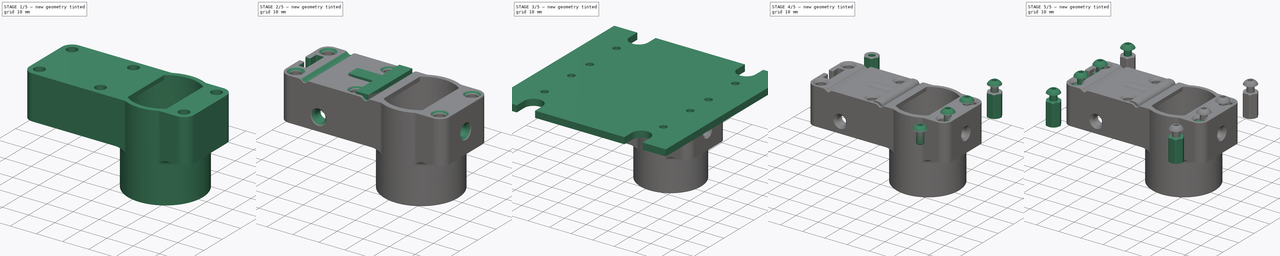
[diagram: build sequence overview — one tinted view per stage of 5, left to right]
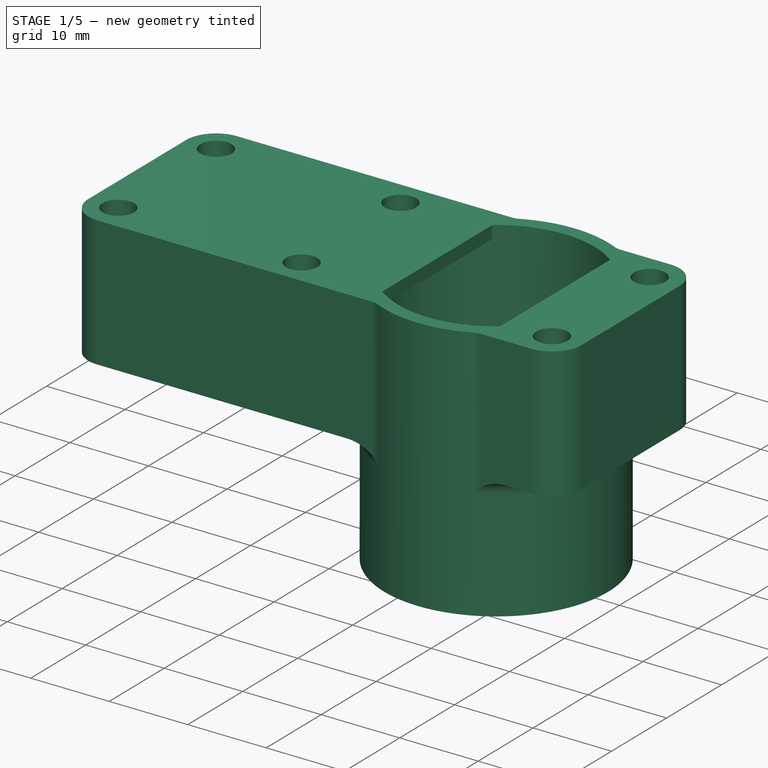
[diagram: stage 1 of 5 — iso view after this stage's code; geometry added in this stage tinted green]
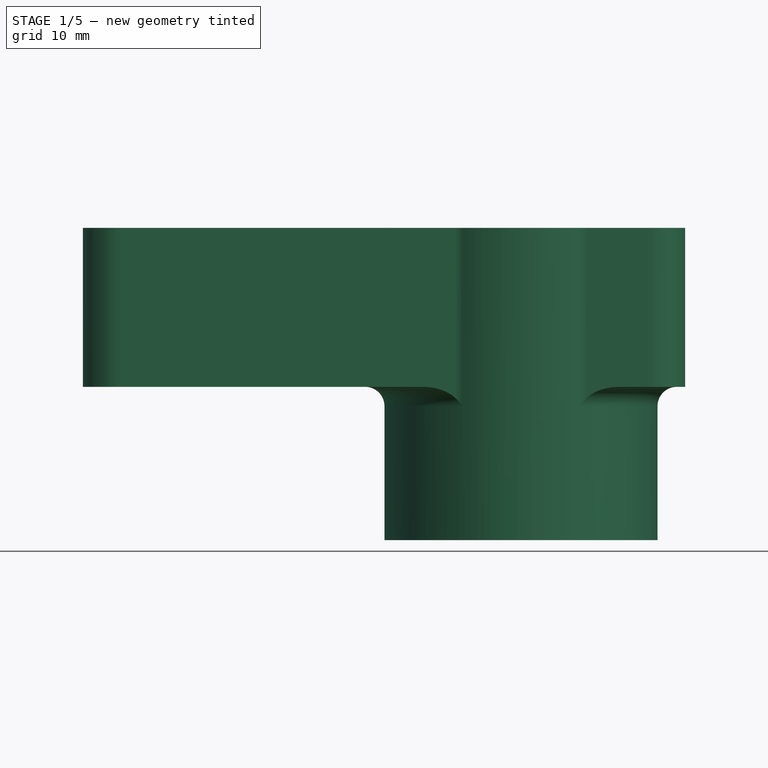
[diagram: stage 1 of 5 — front view after this stage's code; geometry added in this stage tinted green]
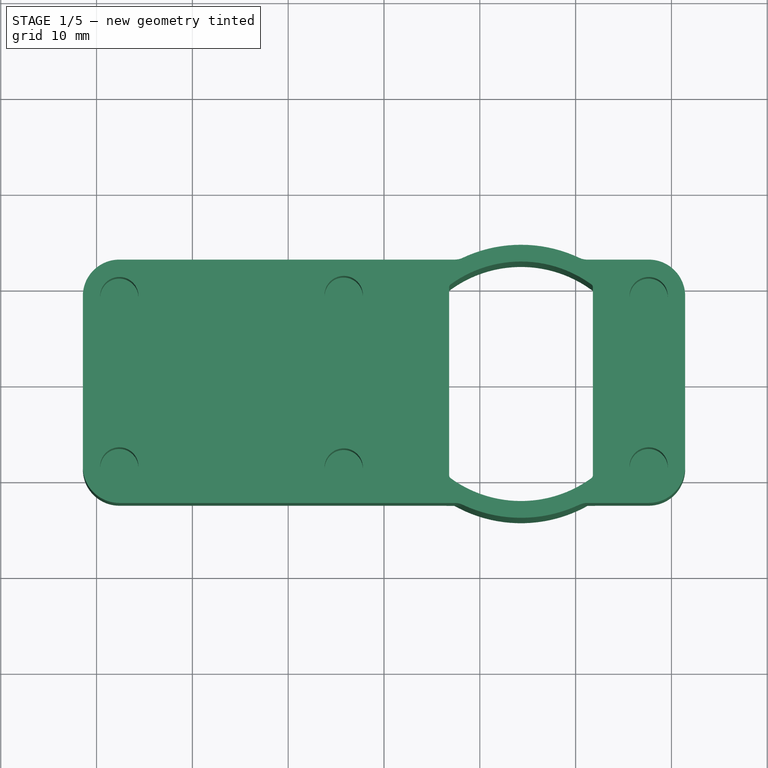
[diagram: stage 1 of 5 — top view after this stage's code; geometry added in this stage tinted green]
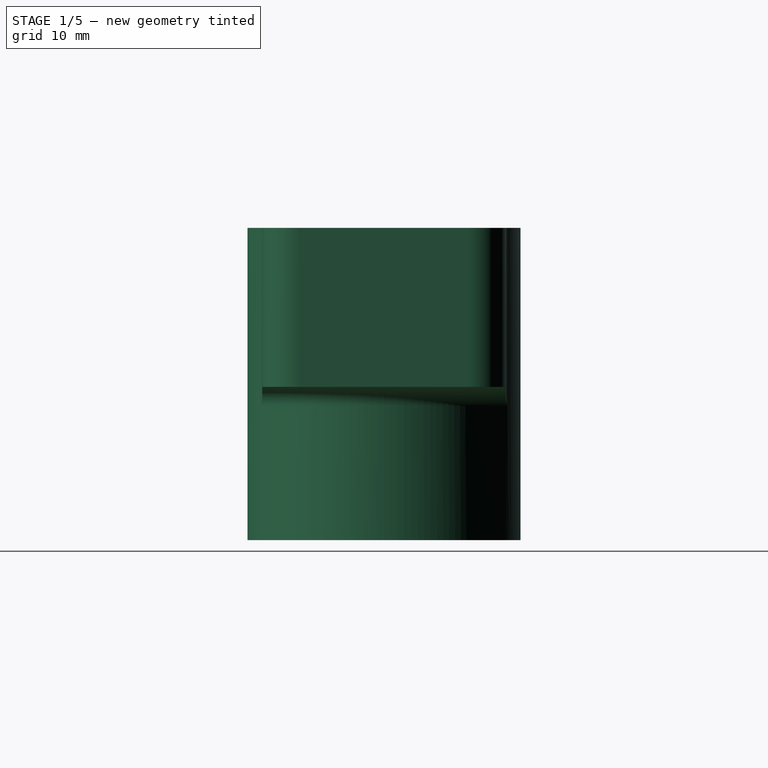
[diagram: stage 1 of 5 — right view after this stage's code; geometry added in this stage tinted green]
FCSTD DOCUMENT  (FreeCAD 2024.113R14555 (Git shallow))
Label: pump-assembled
License: Creative Commons Attribution-NoDerivatives
LicenseURL: http://creativecommons.org/licenses/by-nd/4.0/
objects: App::Part×25, Part::Feature×20, Part::FeaturePython×16, Sketcher::SketchObject×15, App::Link×13, PartDesign::Pocket×10, PartDesign::Chamfer×7, PartDesign::Fillet×6, PartDesign::Pad×5, PartDesign::Body×3, App::DocumentObjectGroup×3, PartDesign::SubShapeBinder×1, TechDraw::DrawSVGTemplate×1, TechDraw::DrawProjGroupItem×1, TechDraw::DrawProjGroup×1, TechDraw::DrawPage×1, Part::SubShapeBinder×1
note: 155 computed .brp shape members not serialized (recipe doc carries the construction recipe); baked Part::Feature solids carry a one-line shape summary decoded from their .brp

FEATURE [PartDesign::Body] Body001  label="T-Connector"
  AutoGroupSolids = false
  ClaimAllChildren = false
  ExportMode = 0
  Group = -> [Sketch002,Pad001,Chamfer002,Fillet,Sketch003,Pocket001,Sketch004,Pocket002,Chamfer003,Chamfer004]
  InvalidShape = false
  Origin = -> Origin024
  Placement = pos=(-16,0,-36) rot=(0,0.707107,-0.707107;3.14159rad)
  SingleSolid = true
  Tip = -> Chamfer004
  TreeRank = 23
  ValidateShape = false
  _ExportChildren = -> [Pad001,Chamfer002,Fillet,Pocket001,Pocket002,Chamfer003,Chamfer004]
  _GroupVersion = 1
FEATURE [App::Part] Part003  label="PumpV01"
  ClaimAllChildren = false
  ExportMode = 1
  Group = -> [MICRO_POMPE_370_v2,miniEV,Part__Feature019,Part]
  Origin = -> Origin025
  TreeRank = 44
  _ExportChildren = -> [MICRO_POMPE_370_v2,miniEV,Part__Feature019,Part]
  _GroupVersion = 1
FEATURE [App::DocumentObjectGroup] Group001  label="Laser"
  ClaimAllChildren = true
  ExportMode = 1
  Group = -> [Page]
  TreeRank = 45
  _GroupVersion = 1
FEATURE [App::Link] Link011  label="Link011(MICRO-POMPE 370 v2)"
  AutoLinkLabel = true
  AutoPlacement = true
  LinkPlacement = pos=(14.2875,0,-0.05) rot=(0.737277,0.67559,0;3.14159rad)
  LinkedObject = -> MICRO_POMPE_370_v2
  Placement = pos=(14.2875,0,-0.05) rot=(0.737277,0.67559,0;3.14159rad)
  SyncGroupVisibility = false
  TreeRank = 47
  _LinkVersion = 1
FEATURE [App::Link] Link012  label="Link012(miniEV)"
  AutoLinkLabel = true
  AutoPlacement = true
  LinkPlacement = pos=(-22.8425,7.5,-18.05) rot=(0,0,-1;1.5708rad)
  LinkedObject = -> miniEV
  Placement = pos=(-22.8425,7.5,-18.05) rot=(0,0,-1;1.5708rad)
  SyncGroupVisibility = false
  TreeRank = 48
  _LinkVersion = 1
FEATURE [Part::SubShapeBinder] Import  label="Import(pumpBoard PCB)"
  BindCopyOnChange = 0
  BindMode = 0
  ClaimChildren = false
  Context = -> Group002 [pumpBoard_1.Part004.Body002.Import.]
  EdgeTolerance = 1e-06
  FillStyle = 0
  Fuse = false
  InvalidShape = false
  MakeFace = false
  MergeEdges = true
  OffsetFill = false
  OffsetIntersection = false
  OffsetJoinType = 0
  OffsetOpenResult = false
  Outline = false
  PartialLoad = false
  Relative = true
  SplitEdges = false
  Support = -> [Part003[Part__Feature019.]]
  TightBound = false
  TreeRank = 63
  ValidateShape = false
  _Version = 8
FEATURE [Sketcher::SketchObject] Sketch005
  ArcFitTolerance = 0
  AttachmentSupport = -> [XY_Plane003]
  ExternalBSplineMaxDegree = 0
  ExternalBSplineTolerance = 0
  ExternalGeometry = -> [Import]
  FullyConstrained = true
  InternalTolerance = 1e-06
  InvalidShape = false
  MakeInternals = false
  MapMode = 5
  Support = -> [XY_Plane003]
  TreeRank = 62
  ValidateShape = false
  sketch-geometry (19):
    g0: Circle CenterX=14.2963 CenterY=-8e-16 CenterZ=0 NormalX=0 NormalY=0 NormalZ=1 AngleXU=0 Radius=12.5
    g1: LineSegment StartX=-23.2712 StartY=7.75 StartZ=0 EndX=-9.27125 EndY=7.75 EndZ=0
    g2: LineSegment StartX=-9.27125 StartY=7.75 StartZ=0 EndX=-9.27125 EndY=-7.75 EndZ=0
    g3: LineSegment StartX=-9.27125 StartY=-7.75 StartZ=0 EndX=-23.2712 EndY=-7.75 EndZ=0
    g4: LineSegment StartX=-23.2712 StartY=-7.75 StartZ=0 EndX=-23.2712 EndY=7.75 EndZ=0
    g5: ArcOfCircle CenterX=-27.6225 CenterY=8.89 CenterZ=0 NormalX=0 NormalY=0 NormalZ=1 AngleXU=0 Radius=3.81 StartAngle=1.5708 EndAngle=3.14159
    g6: ArcOfCircle CenterX=27.6225 CenterY=-8.89 CenterZ=0 NormalX=0 NormalY=0 NormalZ=1 AngleXU=0 Radius=3.81 StartAngle=4.71239 EndAngle=6.28319
    g7: ArcOfCircle CenterX=27.6225 CenterY=8.89 CenterZ=0 NormalX=0 NormalY=0 NormalZ=1 AngleXU=0 Radius=3.81 StartAngle=0 EndAngle=1.5708
    g8: ArcOfCircle CenterX=-27.6225 CenterY=-8.89 CenterZ=0 NormalX=0 NormalY=0 NormalZ=1 AngleXU=0 Radius=3.81 StartAngle=3.14159 EndAngle=4.71239
    g9: LineSegment StartX=-31.4325 StartY=-8.89 StartZ=0 EndX=-31.4325 EndY=8.89 EndZ=0
    g10: LineSegment [constr] StartX=-27.6225 StartY=12.7 StartZ=0 EndX=27.6225 EndY=12.7 EndZ=0
    g11: LineSegment StartX=31.4325 StartY=8.89 StartZ=0 EndX=31.4325 EndY=-8.89 EndZ=0
    g12: LineSegment [constr] StartX=27.6225 StartY=-12.7 StartZ=0 EndX=-27.6225 EndY=-12.7 EndZ=0
    g13: ArcOfCircle CenterX=14.2963 CenterY=-8e-16 CenterZ=0 NormalX=0 NormalY=0 NormalZ=1 AngleXU=0 Radius=14.25 StartAngle=1.10005 EndAngle=2.04155
    g14: ArcOfCircle CenterX=14.2963 CenterY=-8e-16 CenterZ=0 NormalX=0 NormalY=0 NormalZ=1 AngleXU=0 Radius=14.25 StartAngle=4.24164 EndAngle=5.18314
    g15: LineSegment StartX=7.83317 StartY=12.7 StartZ=0 EndX=-27.6225 EndY=12.7 EndZ=0
    g16: LineSegment StartX=20.7595 StartY=12.7 StartZ=0 EndX=27.6225 EndY=12.7 EndZ=0
    g17: LineSegment StartX=20.7595 StartY=-12.7 StartZ=0 EndX=27.6225 EndY=-12.7 EndZ=0
    g18: LineSegment StartX=7.83317 StartY=-12.7 StartZ=0 EndX=-27.6225 EndY=-12.7 EndZ=0
  constraints (46):
    c: PointOnObject(g0,g-1)
    c: Coincident(g1,g2)
    c: Coincident(g2,g3)
    c: Coincident(g3,g4)
    c: Coincident(g4,g1)
    c: Horizontal(g1)
    c: Horizontal(g3)
    c: Vertical(g2)
    c: Symmetric(g3,g1,g-1)
    c: DistanceY(g4,g4) = 15.5
    c: DistanceX(g1,g1) = 14
    c: Diameter(g0) = 25
    c: DistanceX(g0) = 14.2963
    c: DistanceX(g1) = -9.27125
    c: Coincident(g5,g-7)
    c: Coincident(g5,g-7)
    c: Coincident(g6,g-8)
    c: Coincident(g6,g-8)
    c: Coincident(g7,g-5)
    c: Coincident(g8,g-4)
    c: Coincident(g9,g5)
    c: Vertical(g9)
    c: Coincident(g10,g7)
    c: Vertical(g11)
    c: Tangent(g12,g6) = 1.5708
    c: Tangent(g11,g6) = 1.5708
    c: Tangent(g11,g7) = 1.5708
    c: Tangent(g10,g5) = 1.5708
    c: Tangent(g9,g8) = 1.5708
    c: Tangent(g12,g8) = 1.5708
    c: Coincident(g13,g0)
    c: PointOnObject(g13,g10)
    c: PointOnObject(g13,g10)
    c: Coincident(g14,g0)
    c: PointOnObject(g14,g12)
    c: PointOnObject(g14,g12)
    c: Equal(g14,g13)
    c: Coincident(g15,g13)
    c: Coincident(g15,g5)
    c: Coincident(g16,g13)
    c: Coincident(g16,g7)
    c: Coincident(g17,g14)
    c: Coincident(g17,g6)
    c: Coincident(g18,g14)
    c: Coincident(g18,g8)
    c: Radius(g14) = 14.25
FEATURE [PartDesign::Pad] Pad002
  AddSubType = 0
  AlongSketchNormal = false
  AutoTaperInnerAngle = false
  CheckUpToFaceLimits = true
  ClaimChildren = false
  Direction = (0,0,1)
  Fit = 0
  FitJoin = 0
  InnerFit = 0
  InnerFitJoin = 0
  InvalidShape = false
  Length = 15
  Length2 = 100
  Linearize = true
  NewSolid = false
  Profile = -> Sketch005
  Refine = true
  Reversed = true
  Suppress = false
  TaperInnerAngle = 0
  TaperInnerAngleRev = 0
  TreeRank = 64
  Type = 0
  ValidateShape = true
  _ProfileBasedVersion = 1
FEATURE [Sketcher::SketchObject] Sketch006
  ArcFitTolerance = 0
  AttachmentSupport = -> [XY_Plane003]
  ExternalBSplineMaxDegree = 0
  ExternalBSplineTolerance = 0
  ExternalGeometry = -> [Pad002]
  FullyConstrained = true
  InternalTolerance = 1e-06
  InvalidShape = false
  MakeInternals = false
  MapMode = 5
  Support = -> [XY_Plane003]
  TreeRank = 65
  ValidateShape = false
  sketch-geometry (1):
    g0: Circle CenterX=14.2963 CenterY=4e-16 CenterZ=0 NormalX=0 NormalY=0 NormalZ=1 AngleXU=0 Radius=14.25
  constraints (2):
    c: Coincident(g0,g-4)
    c: PointOnObject(g-3,g0)
FEATURE [PartDesign::Pad] Pad003
  AddSubType = 0
  AlongSketchNormal = false
  AutoTaperInnerAngle = false
  BaseFeature = -> Pad002
  CheckUpToFaceLimits = true
  ClaimChildren = false
  Direction = (0,0,1)
  Fit = 0
  FitJoin = 0
  InnerFit = 0
  InnerFitJoin = 0
  InvalidShape = false
  Length = 31
  Length2 = 100
  Linearize = true
  NewSolid = false
  Profile = -> Sketch006
  Refine = true
  Reversed = true
  Suppress = false
  TaperInnerAngle = 0
  TaperInnerAngleRev = 0
  TreeRank = 66
  Type = 0
  ValidateShape = true
  _ProfileBasedVersion = 1
FEATURE [Sketcher::SketchObject] Sketch007
  ArcFitTolerance = 0
  AttachmentSupport = -> [XY_Plane003]
  ExternalBSplineMaxDegree = 0
  ExternalBSplineTolerance = 0
  ExternalGeometry = -> [Pad003]
  FullyConstrained = true
  InternalTolerance = 1e-06
  InvalidShape = false
  MakeInternals = false
  MapMode = 5
  Support = -> [XY_Plane003]
  TreeRank = 67
  ValidateShape = false
  sketch-geometry (4):
    g0: ArcOfCircle CenterX=-20.6255 CenterY=4.7002e-12 CenterZ=0 NormalX=0 NormalY=0 NormalZ=1 AngleXU=0 Radius=4 StartAngle=2.29353 EndAngle=3.98965
    g1: ArcOfCircle CenterX=-11.917 CenterY=5.8572e-12 CenterZ=0 NormalX=0 NormalY=0 NormalZ=1 AngleXU=0 Radius=4 StartAngle=5.43512 EndAngle=7.13125
    g2: LineSegment StartX=-23.2712 StartY=3 StartZ=0 EndX=-23.2712 EndY=-3 EndZ=0
    g3: LineSegment StartX=-9.27125 StartY=3 StartZ=0 EndX=-9.27125 EndY=-3 EndZ=0
  constraints (14):
    c: PointOnObject(g0,g-1)
    c: PointOnObject(g1,g-1)
    c: Equal(g1,g0)
    c: PointOnObject(g1,g-4)
    c: PointOnObject(g1,g-4)
    c: PointOnObject(g0,g-3)
    c: PointOnObject(g0,g-3)
    c: Coincident(g2,g0)
    c: Coincident(g2,g0)
    c: Coincident(g3,g1)
    c: Coincident(g3,g1)
    c: Equal(g3,g2)
    c: DistanceY(g3,g3) = 6
    c: Radius(g1) = 4
FEATURE [PartDesign::Pocket] Pocket003
  AddSubType = 1
  AutoTaperInnerAngle = false
  BaseFeature = -> Pad003
  CheckUpToFaceLimits = true
  ClaimChildren = false
  Direction = (0,0,-1)
  Fit = 0
  FitJoin = 0
  InnerFit = 0
  InnerFitJoin = 0
  InvalidShape = false
  Length = 5
  Length2 = 100
  Linearize = true
  NewSolid = false
  Profile = -> Sketch007
  Refine = true
  Suppress = false
  TaperInnerAngle = 0
  TaperInnerAngleRev = 0
  TreeRank = 68
  Type = 1
  ValidateShape = true
  _ProfileBasedVersion = 1
  _Version = 1
FEATURE [PartDesign::Fillet] Fillet001
  AddSubType = 0
  Base = -> Pocket003 [Edge64,Edge63,Edge59,Edge60]
  BaseFeature = -> Pocket003
  InvalidShape = false
  NewSolid = false
  Radius = 2
  Refine = true
  SupportTransform = false
  Suppress = false
  TreeRank = 69
  UseAllEdges = false
  ValidateShape = true
FEATURE [Sketcher::SketchObject] Sketch008
  ArcFitTolerance = 0
  AttachmentSupport = -> [XY_Plane003]
  ExternalBSplineMaxDegree = 0
  ExternalBSplineTolerance = 0
  ExternalGeometry = -> [Fillet001]
  FullyConstrained = true
  InternalTolerance = 1e-06
  InvalidShape = false
  MakeInternals = false
  MapMode = 5
  Support = -> [XY_Plane003]
  TreeRank = 70
  ValidateShape = false
  sketch-geometry (4):
    g0: LineSegment StartX=6.79633 StartY=10 StartZ=0 EndX=6.79633 EndY=-10 EndZ=0
    g1: LineSegment StartX=21.7963 StartY=10 StartZ=0 EndX=21.7963 EndY=-10 EndZ=0
    g2: ArcOfCircle CenterX=14.2963 CenterY=-8e-16 CenterZ=0 NormalX=0 NormalY=0 NormalZ=1 AngleXU=0 Radius=12.5 StartAngle=0.927295 EndAngle=2.2143
    g3: ArcOfCircle CenterX=14.2963 CenterY=-8e-16 CenterZ=0 NormalX=0 NormalY=0 NormalZ=1 AngleXU=0 Radius=12.5 StartAngle=4.06889 EndAngle=5.35589
  constraints (12):
    c: PointOnObject(g0,g-15)
    c: PointOnObject(g0,g-15)
    c: Vertical(g0)
    c: PointOnObject(g1,g-15)
    c: Vertical(g1)
    c: Equal(g1,g0)
    c: Coincident(g2,g-15)
    c: Coincident(g2,g0)
    c: Coincident(g2,g1)
    c: Coincident(g3,g2)
    c: Coincident(g3,g1)
    c: Coincident(g3,g0)
FEATURE [PartDesign::Pad] Pad004
  AddSubType = 0
  AlongSketchNormal = false
  AutoTaperInnerAngle = false
  BaseFeature = -> Fillet001
  CheckUpToFaceLimits = true
  ClaimChildren = false
  Direction = (0,0,1)
  Fit = 0
  FitJoin = 0
  InnerFit = 0
  InnerFitJoin = 0
  InvalidShape = false
  Length = 1.6
  Length2 = 100
  Linearize = true
  NewSolid = false
  Profile = -> Sketch008
  Refine = true
  Suppress = false
  TaperInnerAngle = 0
  TaperInnerAngleRev = 0
  TreeRank = 71
  Type = 0
  ValidateShape = true
  _ProfileBasedVersion = 1
FEATURE [PartDesign::Fillet] Fillet002
  AddSubType = 0
  Base = -> Pad004 [Edge61,Edge64,Edge65,Edge62]
  BaseFeature = -> Pad004
  InvalidShape = false
  NewSolid = false
  Radius = 0.4
  Refine = true
  SupportTransform = false
  Suppress = false
  TreeRank = 87
  UseAllEdges = false
  ValidateShape = true
FEATURE [Sketcher::SketchObject] Sketch009
  ArcFitTolerance = 0
  AttachmentSupport = -> [Fillet002]
  ExternalBSplineMaxDegree = 0
  ExternalBSplineTolerance = 0
  ExternalGeometry = -> [Fillet002]
  FullyConstrained = true
  InternalTolerance = 1e-06
  InvalidShape = false
  MakeInternals = false
  MapMode = 5
  Placement = pos=(0,0,1.6) rot=(0,0,1;0rad)
  Support = -> [Fillet002]
  TreeRank = 73
  ValidateShape = false
  sketch-geometry (4):
    g0: Circle CenterX=-27.6225 CenterY=8.89 CenterZ=0 NormalX=0 NormalY=0 NormalZ=1 AngleXU=0 Radius=2
    g1: Circle CenterX=-27.6225 CenterY=-8.89 CenterZ=0 NormalX=0 NormalY=0 NormalZ=1 AngleXU=0 Radius=2
    g2: Circle CenterX=27.6225 CenterY=-8.89 CenterZ=0 NormalX=0 NormalY=0 NormalZ=1 AngleXU=0 Radius=2
    g3: Circle CenterX=27.6225 CenterY=8.89 CenterZ=0 NormalX=0 NormalY=0 NormalZ=1 AngleXU=0 Radius=2
  constraints (8):
    c: Coincident(g0,g-3)
    c: Coincident(g1,g-4)
    c: Coincident(g2,g-5)
    c: Coincident(g3,g-6)
    c: Equal(g3,g0)
    c: Equal(g3,g1)
    c: Equal(g3,g2)
    c: Diameter(g3) = 4
FEATURE [PartDesign::Pocket] Pocket004
  AddSubType = 1
  AlongSketchNormal = false
  AutoTaperInnerAngle = false
  BaseFeature = -> Fillet002
  CheckUpToFaceLimits = true
  ClaimChildren = false
  Direction = (0,0,-1)
  Fit = 0
  FitJoin = 0
  InnerFit = 0
  InnerFitJoin = 0
  InvalidShape = false
  Length = 10
  Length2 = 100
  Linearize = true
  NewSolid = false
  Profile = -> Sketch009
  Refine = true
  Suppress = false
  TaperInnerAngle = 0
  TaperInnerAngleRev = 0
  TreeRank = 74
  Type = 0
  ValidateShape = true
  _ProfileBasedVersion = 1
  _Version = 1
FEATURE [PartDesign::Fillet] Fillet003
  AddSubType = 0
  Base = -> Pocket004 [Edge35,Edge32,Edge33,Edge34,Edge28,Edge27]
  BaseFeature = -> Pocket004
  InvalidShape = false
  NewSolid = false
  Radius = 2
  Refine = true
  SupportTransform = false
  Suppress = false
  TreeRank = 75
  UseAllEdges = false
  ValidateShape = true
FEATURE [Sketcher::SketchObject] Sketch010
  ArcFitTolerance = 0
  AttachmentSupport = -> [Fillet003]
  ExternalBSplineMaxDegree = 0
  ExternalBSplineTolerance = 0
  ExternalGeometry = -> [Fillet003]
  FullyConstrained = true
  InternalTolerance = 1e-06
  InvalidShape = false
  MakeInternals = false
  MapMode = 5
  Placement = pos=(0,0,1.6) rot=(0,0,1;0rad)
  Support = -> [Fillet003]
  TreeRank = 76
  ValidateShape = false
  sketch-geometry (6):
    g0: LineSegment [constr] StartX=-23.2037 StartY=12 StartZ=0 EndX=5.79633 EndY=12 EndZ=0
    g1: LineSegment [constr] StartX=5.79633 StartY=12 StartZ=0 EndX=5.79633 EndY=-12 EndZ=0
    g2: LineSegment [constr] StartX=5.79633 StartY=-12 StartZ=0 EndX=-23.2037 EndY=-12 EndZ=0
    g3: LineSegment [constr] StartX=-23.2037 StartY=-12 StartZ=0 EndX=-23.2037 EndY=12 EndZ=0
    g4: Circle CenterX=-4.20367 CenterY=9 CenterZ=0 NormalX=0 NormalY=0 NormalZ=1 AngleXU=0 Radius=2
    g5: Circle CenterX=-4.20367 CenterY=-9 CenterZ=0 NormalX=0 NormalY=0 NormalZ=1 AngleXU=0 Radius=2
  constraints (16):
    c: Coincident(g0,g1)
    c: Coincident(g1,g2)
    c: Coincident(g2,g3)
    c: Coincident(g3,g0)
    c: Horizontal(g0)
    c: Horizontal(g2)
    c: Vertical(g3)
    c: Symmetric(g1,g0,g-1)
    c: DistanceY(g3,g3) = 24
    c: DistanceX(g0,g0) = 29
    c: Symmetric(g5,g4,g-1)
    c: DistanceY(g5,g4) = 18
    c: Equal(g5,g4)
    c: Diameter(g5) = 4
    c: DistanceX(g4,g0) = 10
    c: DistanceX(g4,g-3) = 11
FEATURE [PartDesign::Pocket] Pocket005
  AddSubType = 1
  AutoTaperInnerAngle = false
  BaseFeature = -> Fillet003
  CheckUpToFaceLimits = true
  ClaimChildren = false
  Direction = (0,0,-1)
  Fit = 0
  FitJoin = 0
  InnerFit = 0
  InnerFitJoin = 0
  InvalidShape = false
  Length = 10
  Length2 = 100
  Linearize = true
  NewSolid = false
  Profile = -> Sketch010
  Refine = true
  Suppress = false
  TaperInnerAngle = 0
  TaperInnerAngleRev = 0
  TreeRank = 77
  Type = 0
  ValidateShape = true
  _ProfileBasedVersion = 1
  _Version = 1
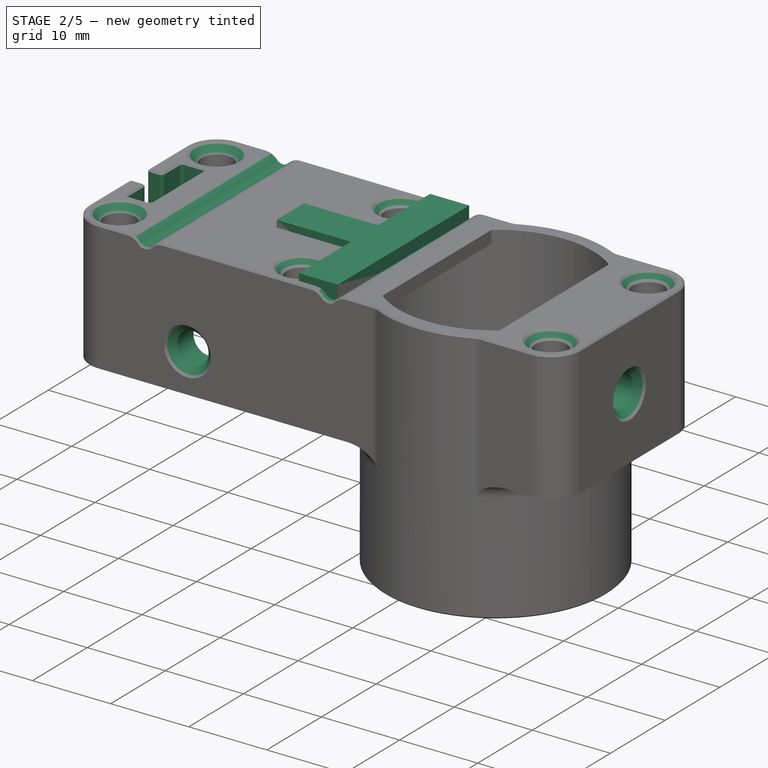
[diagram: stage 2 of 5 — iso view after this stage's code; geometry added in this stage tinted green]
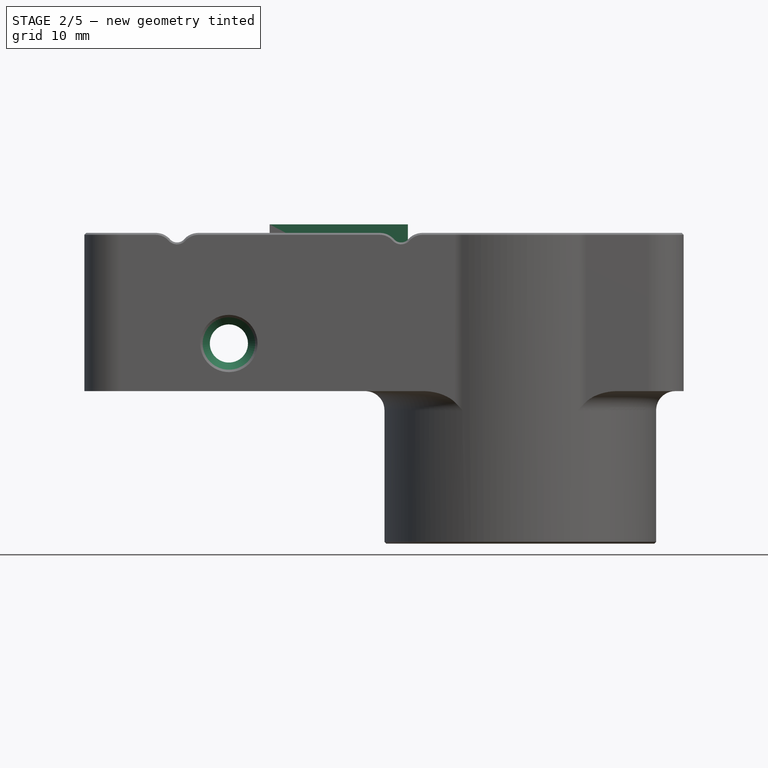
[diagram: stage 2 of 5 — front view after this stage's code; geometry added in this stage tinted green]
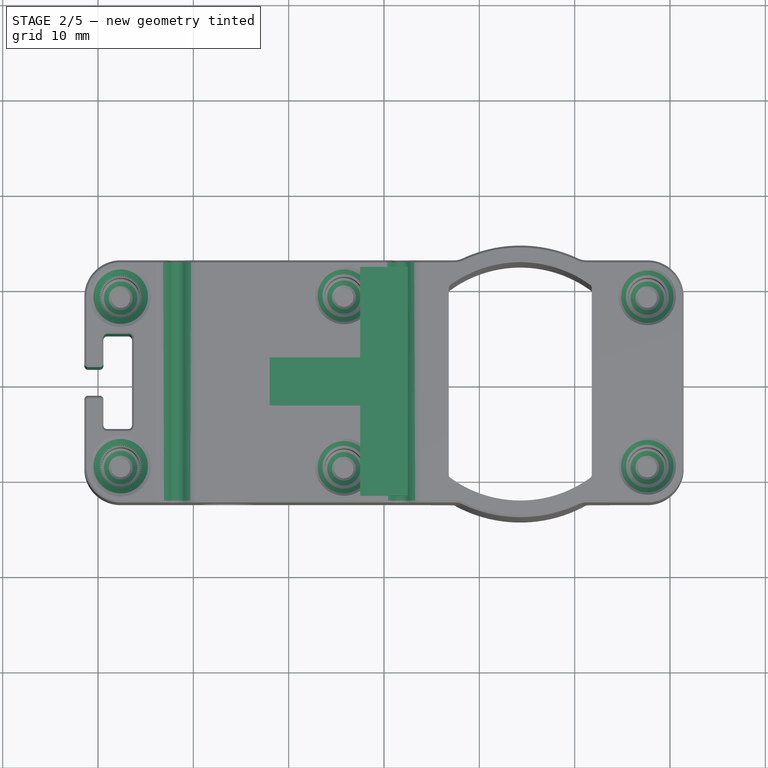
[diagram: stage 2 of 5 — top view after this stage's code; geometry added in this stage tinted green]
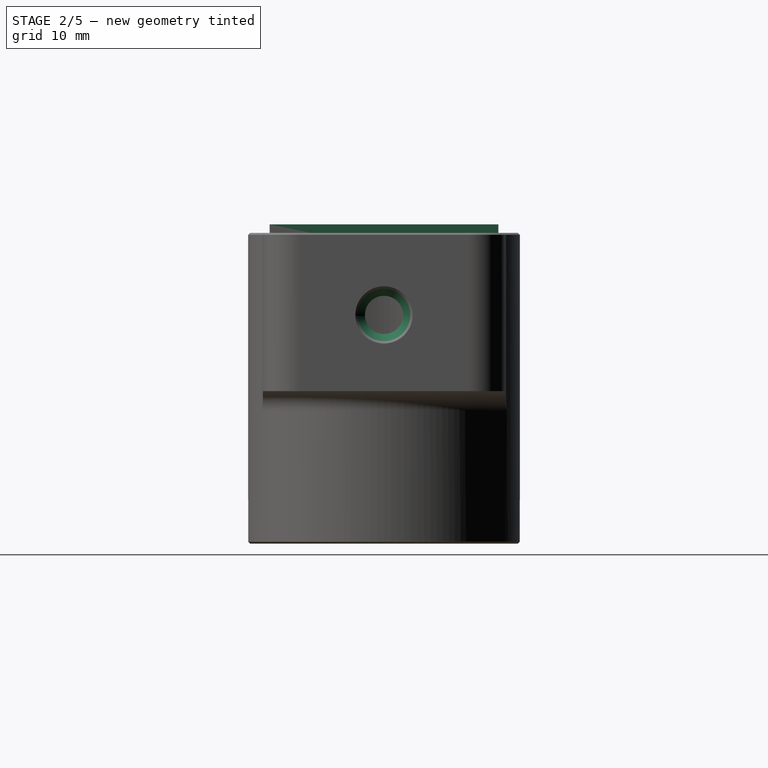
[diagram: stage 2 of 5 — right view after this stage's code; geometry added in this stage tinted green]
FEATURE [App::DocumentObjectGroup] Group  label="Visserie"
  ClaimAllChildren = true
  ExportMode = 1
  Group = -> [PcbSpacer,PcbSpacer001,PcbSpacer002,PcbSpacer003,PcbSpacer005,PcbSpacer006,PcbSpacer007,PcbSpacer008,Screw,Screw001,Screw002,Screw003,Screw004,Screw005,Screw006,Screw007]
  TreeRank = 0
  _GroupVersion = 1
FEATURE [App::Part] Part001  label="TwoPumps"
  ClaimAllChildren = false
  ExportMode = 1
  Group = -> [Link,Link001,Body,Group,PcbSpacer008,PcbSpacer,PcbSpacer003,PcbSpacer001,PcbSpacer002,PcbSpacer007,PcbSpacer005,PcbSpacer006,Screw,Screw001,Screw002,Screw003,Screw004,Screw005,Screw006,Screw007]
  Origin = -> Origin021
  TreeRank = 5
  _ExportChildren = -> [Link,Link001,Body,Group]
  _GroupVersion = 1
FEATURE [TechDraw::DrawSVGTemplate] Template
  Height = 210
  Orientation = 1
  TreeRank = 2
  Width = 297
FEATURE [TechDraw::DrawProjGroupItem] ProjItem  label="Front"
  CoarseView = false
  Direction = (0,0,1)
  Focus = 100
  HardHidden = false
  IsoCount = 0
  IsoHidden = false
  IsoVisible = false
  LockPosition = true
  Perspective = false
  Rotation = 0
  RotationVector = (0,1,0)
  ScaleType = 2
  ScrubCount = 0
  SeamHidden = false
  SeamVisible = true
  SmoothHidden = false
  SmoothVisible = true
  Source = -> [Chamfer001]
  TreeRank = 8
  Type = 0
  X = 0
  XDirection = (0,1,0)
  Y = 0
FEATURE [TechDraw::DrawProjGroup] ProjGroup
  Anchor = -> ProjItem
  AutoDistribute = true
  LockPosition = false
  ProjectionType = 0
  Rotation = 0
  ScaleType = 0
  Source = -> [Chamfer001]
  TreeRank = 9
  Views = -> [ProjItem]
  X = 41.8052
  Y = 168.411
  spacingX = 15
  spacingY = 15
FEATURE [TechDraw::DrawPage] Page  label="Laser3mmTwoPump"
  KeepUpdated = true
  NextBalloonIndex = 1
  ProjectionType = 0
  Template = -> Template
  TreeRank = 4
  Views = -> [ProjGroup]
FEATURE [App::Link] Link002  label="Link002(pumpBoard 1)"
  AutoLinkLabel = true
  AutoPlacement = true
  LinkedObject = -> pumpBoard_1
  SyncGroupVisibility = false
  TreeRank = 25
  _LinkVersion = 1
FEATURE [App::Link] Link003  label="Link003(M3x5.5x10-Spacer005)"
  AutoLinkLabel = true
  AutoPlacement = true
  LinkPlacement = pos=(-27.6225,-8.89,11.6) rot=(1,0,0;3.14159rad)
  LinkedObject = -> PcbSpacer006
  Placement = pos=(-27.6225,-8.89,11.6) rot=(1,0,0;3.14159rad)
  SyncGroupVisibility = false
  TreeRank = 26
  _LinkVersion = 1
FEATURE [App::Link] Link004  label="Link004(M3x5.5x10-Spacer006)"
  AutoLinkLabel = true
  AutoPlacement = true
  LinkPlacement = pos=(-27.6225,8.89,11.6) rot=(1,0,0;3.14159rad)
  LinkedObject = -> PcbSpacer007
  Placement = pos=(-27.6225,8.89,11.6) rot=(1,0,0;3.14159rad)
  SyncGroupVisibility = false
  TreeRank = 27
  _LinkVersion = 1
FEATURE [App::Link] Link005  label="Link005(M3x5.5x10-Spacer001)"
  AutoLinkLabel = true
  AutoPlacement = true
  LinkPlacement = pos=(27.6225,-8.89,11.6) rot=(1,0,0;3.14159rad)
  LinkedObject = -> PcbSpacer001
  Placement = pos=(27.6225,-8.89,11.6) rot=(1,0,0;3.14159rad)
  SyncGroupVisibility = false
  TreeRank = 28
  _LinkVersion = 1
FEATURE [App::Link] Link006  label="Link006(M3x5.5x10-Spacer)"
  AutoLinkLabel = true
  AutoPlacement = true
  LinkPlacement = pos=(27.6225,8.89,11.6) rot=(1,0,0;3.14159rad)
  LinkedObject = -> PcbSpacer
  Placement = pos=(27.6225,8.89,11.6) rot=(1,0,0;3.14159rad)
  SyncGroupVisibility = false
  TreeRank = 29
  _LinkVersion = 1
FEATURE [App::Link] Link007  label="Link007(M3x6-Screw010)"
  AutoLinkLabel = true
  AutoPlacement = true
  LinkPlacement = pos=(27.6225,-8.89,14.6) rot=(0,0,1;0rad)
  LinkedObject = -> Screw003
  Placement = pos=(27.6225,-8.89,14.6) rot=(0,0,1;0rad)
  SyncGroupVisibility = false
  TreeRank = 30
  _LinkVersion = 1
FEATURE [App::Link] Link008  label="Link008(M3x6-Screw009)"
  AutoLinkLabel = true
  AutoPlacement = true
  LinkPlacement = pos=(27.6225,8.89,14.6) rot=(0,0,1;0rad)
  LinkedObject = -> Screw002
  Placement = pos=(27.6225,8.89,14.6) rot=(0,0,1;0rad)
  SyncGroupVisibility = false
  TreeRank = 31
  _LinkVersion = 1
FEATURE [App::Link] Link009  label="Link009(M3x6-Screw008)"
  AutoLinkLabel = true
  AutoPlacement = true
  LinkPlacement = pos=(-27.6225,-8.89,14.6) rot=(0,0,1;0rad)
  LinkedObject = -> Screw001
  Placement = pos=(-27.6225,-8.89,14.6) rot=(0,0,1;0rad)
  SyncGroupVisibility = false
  TreeRank = 32
  _LinkVersion = 1
FEATURE [App::Link] Link010  label="Link010(M3x6-Screw)"
  AutoLinkLabel = true
  AutoPlacement = true
  LinkPlacement = pos=(-27.6225,8.89,14.6) rot=(0,0,1;0rad)
  LinkedObject = -> Screw
  Placement = pos=(-27.6225,8.89,14.6) rot=(0,0,1;0rad)
  SyncGroupVisibility = false
  TreeRank = 33
  _LinkVersion = 1
FEATURE [App::Part] Part002  label="OnePumps"
  ClaimAllChildren = false
  ExportMode = 1
  Group = -> [Link002,Link003,Link004,Link005,Link006,Link007,Link008,Link009,Link010]
  Origin = -> Origin023
  TreeRank = 12
  _ExportChildren = -> [Link002,Link003,Link004,Link005,Link006,Link007,Link008,Link009,Link010]
  _GroupVersion = 1
FEATURE [Sketcher::SketchObject] Sketch002
  ArcFitTolerance = 0
  AttachmentSupport = -> [XY_Plane002]
  ExternalBSplineMaxDegree = 0
  ExternalBSplineTolerance = 0
  FullyConstrained = true
  InternalTolerance = 1e-06
  InvalidShape = false
  MakeInternals = false
  MapMode = 5
  Support = -> [XY_Plane002]
  TreeRank = 14
  ValidateShape = false
  sketch-geometry (8):
    g0: LineSegment StartX=-12 StartY=2.5 StartZ=0 EndX=-2.5 EndY=2.5 EndZ=0
    g1: LineSegment StartX=-2.5 StartY=2.5 StartZ=0 EndX=-2.5 EndY=12 EndZ=0
    g2: LineSegment StartX=-2.5 StartY=12 StartZ=0 EndX=2.5 EndY=12 EndZ=0
    g3: LineSegment StartX=2.5 StartY=12 StartZ=0 EndX=2.5 EndY=-12 EndZ=0
    g4: LineSegment StartX=2.5 StartY=-12 StartZ=0 EndX=-2.5 EndY=-12 EndZ=0
    g5: LineSegment StartX=-2.5 StartY=-12 StartZ=0 EndX=-2.5 EndY=-2.5 EndZ=0
    g6: LineSegment StartX=-2.5 StartY=-2.5 StartZ=0 EndX=-12 EndY=-2.5 EndZ=0
    g7: LineSegment StartX=-12 StartY=-2.5 StartZ=0 EndX=-12 EndY=2.5 EndZ=0
  constraints (22):
    c: Horizontal(g0)
    c: Coincident(g0,g1)
    c: Vertical(g1)
    c: Coincident(g1,g2)
    c: Coincident(g2,g3)
    c: Vertical(g3)
    c: Coincident(g3,g4)
    c: Horizontal(g4)
    c: Coincident(g4,g5)
    c: Vertical(g5)
    c: Coincident(g5,g6)
    c: Horizontal(g6)
    c: Coincident(g6,g7)
    c: Coincident(g7,g0)
    c: Symmetric(g1,g2,g-2)
    c: Symmetric(g6,g0,g-1)
    c: Equal(g4,g2)
    c: Equal(g7,g2)
    c: DistanceX(g0,g-1) = 12
    c: DistanceY(g7,g7) = 5
    c: DistanceY(g4,g-1) = 12
    c: DistanceY(g-1,g2) = 12
FEATURE [PartDesign::Pad] Pad001
  AddSubType = 0
  AlongSketchNormal = false
  AutoTaperInnerAngle = false
  CheckUpToFaceLimits = true
  ClaimChildren = false
  Direction = (0,0,1)
  Fit = 0
  FitJoin = 0
  InnerFit = 0
  InnerFitJoin = 0
  InvalidShape = false
  Length = 5
  Length2 = 100
  Linearize = true
  Midplane = true
  NewSolid = false
  Profile = -> Sketch002
  Refine = true
  Suppress = false
  TaperInnerAngle = 0
  TaperInnerAngleRev = 0
  TreeRank = 15
  Type = 0
  ValidateShape = true
  _ProfileBasedVersion = 1
FEATURE [Sketcher::SketchObject] Sketch011
  ArcFitTolerance = 0
  AttachmentSupport = -> [XZ_Plane003]
  ExternalBSplineMaxDegree = 0
  ExternalBSplineTolerance = 0
  ExternalGeometry = -> [Pocket005]
  FullyConstrained = true
  InternalTolerance = 1e-06
  InvalidShape = false
  MakeInternals = false
  MapMode = 5
  Placement = pos=(0,0,0) rot=(1,0,0;1.5708rad)
  Support = -> [XZ_Plane003]
  TreeRank = 78
  ValidateShape = false
  sketch-geometry (3):
    g0: Circle CenterX=1.79633 CenterY=1.6 CenterZ=0 NormalX=0 NormalY=0 NormalZ=1 AngleXU=0 Radius=1
    g1: Circle CenterX=-21.7037 CenterY=1.6 CenterZ=0 NormalX=0 NormalY=0 NormalZ=1 AngleXU=0 Radius=1
    g2: GeomPoint [constr] X=-4.20367 Y=-8.4 Z=0
  constraints (7):
    c: PointOnObject(g1,g-4)
    c: PointOnObject(g0,g-4)
    c: Equal(g0,g1)
    c: Diameter(g0) = 2
    c: Symmetric(g-3,g-3,g2)
    c: DistanceX(g2,g0) = 6
    c: DistanceX(g1,g0) = 23.5
FEATURE [PartDesign::Pocket] Pocket006
  AddSubType = 1
  AutoTaperInnerAngle = false
  BaseFeature = -> Pocket005
  CheckUpToFaceLimits = true
  ClaimChildren = false
  Direction = (0,1,2e-16)
  Fit = 0
  FitJoin = 0
  InnerFit = 0
  InnerFitJoin = 0
  InvalidShape = false
  Length = 5
  Length2 = 100
  Linearize = true
  Midplane = true
  NewSolid = false
  Profile = -> Sketch011
  Refine = true
  Suppress = false
  TaperInnerAngle = 0
  TaperInnerAngleRev = 0
  TreeRank = 79
  Type = 1
  ValidateShape = true
  _ProfileBasedVersion = 1
  _Version = 1
FEATURE [PartDesign::Fillet] Fillet004
  AddSubType = 0
  Base = -> Pocket006 [Edge61,Edge13,Edge116,Edge121]
  BaseFeature = -> Pocket006
  InvalidShape = false
  NewSolid = false
  Radius = 2
  Refine = true
  SupportTransform = false
  Suppress = false
  TreeRank = 80
  UseAllEdges = false
  ValidateShape = true
FEATURE [Sketcher::SketchObject] Sketch012
  ArcFitTolerance = 0
  AttachmentSupport = -> [XZ_Plane003]
  ExternalBSplineMaxDegree = 0
  ExternalBSplineTolerance = 0
  ExternalGeometry = -> [Fillet004]
  FullyConstrained = true
  InternalTolerance = 1e-06
  InvalidShape = false
  MakeInternals = false
  MapMode = 5
  Placement = pos=(0,0,0) rot=(1,0,0;1.5708rad)
  Support = -> [XZ_Plane003]
  TreeRank = 82
  ValidateShape = false
  sketch-geometry (2):
    g0: LineSegment [constr] StartX=-16.2712 StartY=-10 StartZ=0 EndX=-16.2712 EndY=-1.8e-15 EndZ=0
    g1: Circle CenterX=-16.2712 CenterY=-10 CenterZ=0 NormalX=0 NormalY=0 NormalZ=1 AngleXU=0 Radius=2
  constraints (5):
    c: Vertical(g0)
    c: DistanceY(g0,g0) = 10
    c: Coincident(g1,g0)
    c: Diameter(g1) = 4
    c: Symmetric(g-3,g-3,g0)
FEATURE [PartDesign::Pocket] Pocket007
  AddSubType = 1
  AlongSketchNormal = false
  AutoTaperInnerAngle = true
  BaseFeature = -> Fillet004
  CheckUpToFaceLimits = true
  ClaimChildren = false
  Direction = (0,1,2e-16)
  Fit = 0
  FitJoin = 0
  FixShape = 1
  InnerFit = 0
  InnerFitJoin = 0
  InvalidShape = false
  Length = 5
  Length2 = 10
  Linearize = true
  Midplane = true
  NewSolid = false
  Profile = -> Sketch012
  ReferenceAxis = -> Sketch012 [N_Axis]
  Refine = true
  Suppress = false
  TaperInnerAngle = 0
  TaperInnerAngleRev = 0
  TreeRank = 89
  Type = 1
  ValidateShape = true
  _ProfileBasedVersion = 1
  _Version = 1
FEATURE [Sketcher::SketchObject] Sketch013
  ArcFitTolerance = 0
  AttachmentSupport = -> [Pocket007]
  ExternalBSplineMaxDegree = 0
  ExternalBSplineTolerance = 0
  FullyConstrained = true
  InternalTolerance = 1e-06
  InvalidShape = false
  MakeInternals = false
  MapMode = 5
  Placement = pos=(31.4325,0,0) rot=(0.57735,0.57735,0.57735;2.0944rad)
  Support = -> [Pocket007]
  TreeRank = 84
  ValidateShape = false
  sketch-geometry (1):
    g0: Circle CenterX=0 CenterY=-7 CenterZ=0 NormalX=0 NormalY=0 NormalZ=1 AngleXU=0 Radius=2
  constraints (3):
    c: PointOnObject(g0,g-2)
    c: Diameter(g0) = 4
    c: DistanceY(g0,g-1) = 7
FEATURE [PartDesign::Pocket] Pocket008
  AddSubType = 1
  AlongSketchNormal = false
  AutoTaperInnerAngle = true
  BaseFeature = -> Pocket007
  CheckUpToFaceLimits = true
  ClaimChildren = false
  Direction = (-1,0,0)
  Fit = 0
  FitJoin = 0
  InnerFit = 0
  InnerFitJoin = 0
  InvalidShape = false
  Length = 8
  Length2 = 10
  Linearize = true
  NewSolid = false
  Profile = -> Sketch013
  ReferenceAxis = -> Sketch013 [N_Axis]
  Refine = true
  Suppress = false
  TaperInnerAngle = 0
  TaperInnerAngleRev = 0
  TreeRank = 90
  Type = 0
  ValidateShape = true
  _ProfileBasedVersion = 1
  _Version = 1
FEATURE [Sketcher::SketchObject] Sketch014
  ArcFitTolerance = 1e-06
  AttachmentSupport = -> [Pocket008]
  ExternalBSplineMaxDegree = 5
  ExternalBSplineTolerance = 0.0001
  ExternalGeometry = -> [Pocket008]
  FullyConstrained = true
  InternalTolerance = 1e-06
  InvalidShape = false
  MakeInternals = false
  MapMode = 5
  Placement = pos=(0,0,1.6) rot=(0,0,1;0rad)
  Support = -> [Pocket008]
  TreeRank = 88
  ValidateShape = false
  sketch-geometry (12):
    g0: LineSegment [constr] StartX=-29.4325 StartY=-5 StartZ=0 EndX=-29.4325 EndY=5 EndZ=0
    g1: LineSegment StartX=-29.4325 StartY=5 StartZ=0 EndX=-26.4325 EndY=5 EndZ=0
    g2: LineSegment StartX=-26.4325 StartY=5 StartZ=0 EndX=-26.4325 EndY=-5 EndZ=0
    g3: LineSegment StartX=-26.4325 StartY=-5 StartZ=0 EndX=-29.4325 EndY=-5 EndZ=0
    g4: GeomPoint [constr] X=-27.9325 Y=0 Z=0
    g5: LineSegment StartX=-31.4325 StartY=-1.5 StartZ=0 EndX=-31.4325 EndY=1.5 EndZ=0
    g6: LineSegment StartX=-31.4325 StartY=1.5 StartZ=0 EndX=-29.4325 EndY=1.5 EndZ=0
    g7: LineSegment [constr] StartX=-29.4325 StartY=1.5 StartZ=0 EndX=-29.4325 EndY=-1.5 EndZ=0
    g8: LineSegment StartX=-29.4325 StartY=-1.5 StartZ=0 EndX=-31.4325 EndY=-1.5 EndZ=0
    g9: GeomPoint [constr] X=-30.4325 Y=0 Z=0
    g10: LineSegment StartX=-29.4325 StartY=1.5 StartZ=0 EndX=-29.4325 EndY=5 EndZ=0
    g11: LineSegment StartX=-29.4325 StartY=-5 StartZ=0 EndX=-29.4325 EndY=-1.5 EndZ=0
  constraints (30):
    c: Coincident(g0,g1)
    c: Coincident(g1,g2)
    c: Coincident(g2,g3)
    c: Coincident(g3,g0)
    c: Horizontal(g1)
    c: Horizontal(g3)
    c: Vertical(g0)
    c: Vertical(g2)
    c: Symmetric(g1,g0,g4)
    c: PointOnObject(g4,g-1)
    c: Coincident(g5,g6)
    c: Coincident(g6,g7)
    c: Coincident(g7,g8)
    c: Coincident(g8,g5)
    c: Horizontal(g6)
    c: Horizontal(g8)
    c: Vertical(g5)
    c: Vertical(g7)
    c: Symmetric(g6,g5,g9)
    c: PointOnObject(g9,g-1)
    c: PointOnObject(g6,g0)
    c: Coincident(g10,g6)
    c: Coincident(g10,g1)
    c: Coincident(g11,g3)
    c: Coincident(g11,g8)
    c: DistanceY(g2,g2) = 10
    c: DistanceX(g1,g1) = 3
    c: DistanceY(g5,g5) = 3
    c: DistanceX(g6,g6) = 2
    c: PointOnObject(g5,g-3)
FEATURE [PartDesign::Pocket] Pocket009
  AddSubType = 1
  AlongSketchNormal = false
  AutoTaperInnerAngle = true
  BaseFeature = -> Pocket008
  CheckUpToFaceLimits = true
  ClaimChildren = false
  Direction = (0,0,-1)
  Fit = 0
  FitJoin = 0
  InnerFit = 0
  InnerFitJoin = 0
  InvalidShape = false
  Length = 5
  Length2 = 10
  Linearize = true
  NewSolid = false
  Profile = -> Sketch014
  ReferenceAxis = -> Sketch014 [N_Axis]
  Refine = true
  Suppress = false
  TaperInnerAngle = 0
  TaperInnerAngleRev = 0
  TreeRank = 91
  Type = 1
  ValidateShape = true
  _ProfileBasedVersion = 1
  _Version = 1
FEATURE [PartDesign::Fillet] Fillet005
  AddSubType = 0
  Base = -> Pocket009 [Edge172,Edge165,Edge166,Edge171,Edge170,Edge169,Edge168,Edge167]
  BaseFeature = -> Pocket009
  InvalidShape = false
  NewSolid = false
  Radius = 0.4
  Refine = true
  SupportTransform = false
  Suppress = false
  TreeRank = 92
  UseAllEdges = false
  ValidateShape = true
FEATURE [PartDesign::Chamfer] Chamfer005
  AddSubType = 0
  Angle = 45
  Base = -> Fillet005 [Face25,Face24,Face38,Face36,Face71,Face70,Face61,Face69,Face77]
  BaseFeature = -> Fillet005
  ChamferType = 0
  FlipDirection = false
  InvalidShape = false
  NewSolid = false
  Refine = true
  Size = 1
  Size2 = 1
  SupportTransform = false
  Suppress = false
  TreeRank = 93
  UseAllEdges = false
  ValidateShape = true
FEATURE [PartDesign::Chamfer] Chamfer006
  AddSubType = 0
  Angle = 45
  Base = -> Chamfer005 [Face1,Edge207,Edge181,Edge98,Edge105,Edge103,Edge107]
  BaseFeature = -> Chamfer005
  ChamferType = 0
  FlipDirection = false
  InvalidShape = false
  NewSolid = false
  Refine = true
  Size = 0.2
  Size2 = 1
  SupportTransform = false
  Suppress = false
  TreeRank = 94
  UseAllEdges = false
  ValidateShape = true
FEATURE [PartDesign::Body] Body002  label="SupportPompe"
  AutoGroupSolids = false
  ClaimAllChildren = false
  ExportMode = 0
  Group = -> [Sketch005,Import,Pad002,Sketch006,Pad003,Sketch007,Pocket003,Fillet001,Sketch008,Pad004,Fillet002,Sketch009,Pocket004,Fillet003,Sketch010,Pocket005,Sketch011,Pocket006,Fillet004,Sketch012,Sketch013,Sketch014,Pocket007,Pocket008,Pocket009,Fillet005,Chamfer005,Chamfer006]
  InvalidShape = false
  Origin = -> Origin027
  SingleSolid = true
  Tip = -> Chamfer006
  TreeRank = 61
  ValidateShape = false
  _ExportChildren = -> [Import,Pad002,Pad003,Pocket003,Fillet001,Pad004,Fillet002,Pocket004,Fillet003,Pocket005,Pocket006,Fillet004,Pocket007,Pocket008,Pocket009,Fillet005,Chamfer005,Chamfer006]
  _GroupVersion = 1
FEATURE [App::Part] Part004  label="PumpV02"
  ClaimAllChildren = false
  ExportMode = 1
  Group = -> [Link011,Link012,Body002]
  Origin = -> Origin026
  TreeRank = 51
  _ExportChildren = -> [Link011,Link012,Body002]
  _GroupVersion = 1
FEATURE [App::Part] pumpBoard_1  label="pumpBoard 1"
  ClaimAllChildren = false
  ExportMode = 1
  Group = -> [Part003,Part004]
  Origin = -> Origin019
  TreeRank = 3
  _ExportChildren = -> [Part003,Part004]
  _GroupVersion = 1
FEATURE [App::DocumentObjectGroup] Group002  label="Parts"
  ClaimAllChildren = true
  ExportMode = 1
  Group = -> [pumpBoard_1,Body001]
  TreeRank = 46
  _GroupVersion = 1
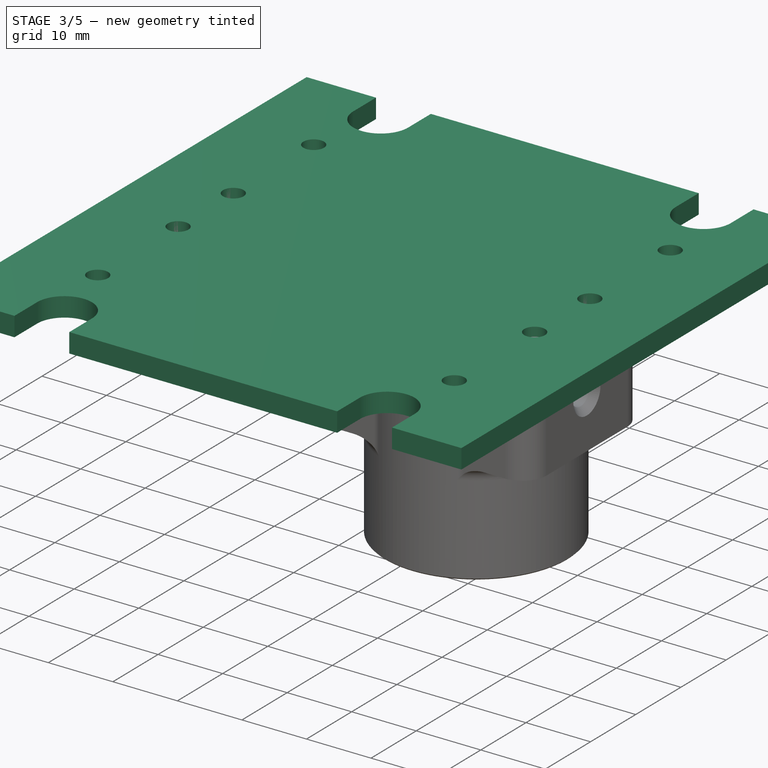
[diagram: stage 3 of 5 — iso view after this stage's code; geometry added in this stage tinted green]
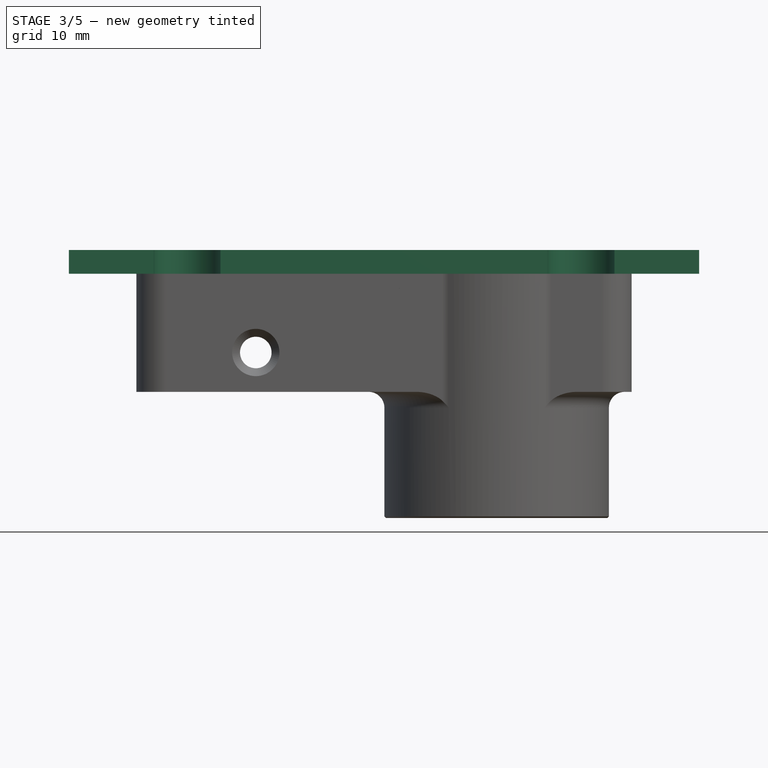
[diagram: stage 3 of 5 — front view after this stage's code; geometry added in this stage tinted green]
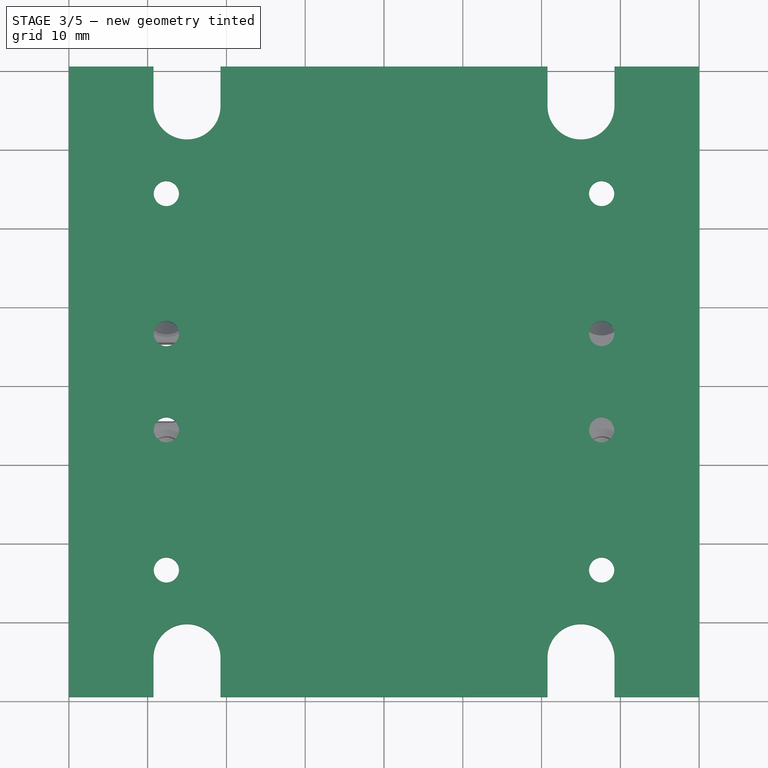
[diagram: stage 3 of 5 — top view after this stage's code; geometry added in this stage tinted green]
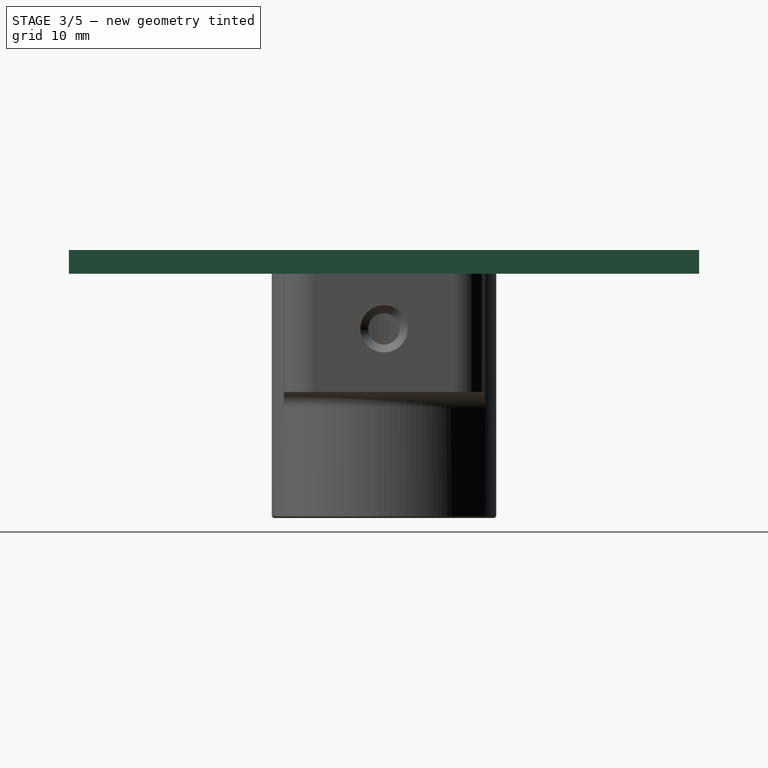
[diagram: stage 3 of 5 — right view after this stage's code; geometry added in this stage tinted green]
FEATURE [Part::Feature] Part__Feature  label="SOLID"
  InvalidShape = false
  TreeRank = 0
  ValidateShape = false
  shape: bbox 3.2 x 1.6 x 0.55 mm, 26 faces (baked)
FEATURE [App::Part] R_1206_3216Metric
  ClaimAllChildren = false
  ExportMode = 1
  Group = -> [Part__Feature]
  Origin = -> Origin
  Placement = pos=(-9.8425,9.525,1.65) rot=(0,0,1;3.14159rad)
  TreeRank = 0
  _ExportChildren = -> [Part__Feature]
  _GroupVersion = 1
FEATURE [Part::Feature] Part__Feature001  label="SOLID"
  InvalidShape = false
  TreeRank = 0
  ValidateShape = false
  shape: bbox 3.2 x 1.6 x 0.55 mm, 26 faces (baked)
FEATURE [App::Part] R_1206_3216Metric001  label="R_1206_3216Metric"
  ClaimAllChildren = false
  ExportMode = 1
  Group = -> [Part__Feature001]
  Origin = -> Origin001
  Placement = pos=(5.3975,4.38,1.65) rot=(0,0,1;1.5708rad)
  TreeRank = 0
  _ExportChildren = -> [Part__Feature001]
  _GroupVersion = 1
FEATURE [Part::Feature] Part__Feature002  label="SOLID"
  InvalidShape = false
  TreeRank = 0
  ValidateShape = false
  shape: bbox 3.2 x 1.6 x 0.55 mm, 26 faces (baked)
FEATURE [App::Part] R_1206_3216Metric002  label="R_1206_3216Metric"
  ClaimAllChildren = false
  ExportMode = 1
  Group = -> [Part__Feature002]
  Origin = -> Origin002
  Placement = pos=(7.9375,-5.08,1.65) rot=(0,0,-1;1.5708rad)
  TreeRank = 0
  _ExportChildren = -> [Part__Feature002]
  _GroupVersion = 1
FEATURE [Part::Feature] Part__Feature003  label="SOLID"
  InvalidShape = false
  TreeRank = 0
  ValidateShape = false
  shape: bbox 3.2 x 1.6 x 0.55 mm, 26 faces (baked)
FEATURE [App::Part] R_1206_3216Metric003  label="R_1206_3216Metric"
  ClaimAllChildren = false
  ExportMode = 1
  Group = -> [Part__Feature003]
  Origin = -> Origin003
  Placement = pos=(2.8575,4.445,1.65) rot=(0,0,1;1.5708rad)
  TreeRank = 0
  _ExportChildren = -> [Part__Feature003]
  _GroupVersion = 1
FEATURE [Part::Feature] Part__Feature004  label="SOLID"
  InvalidShape = false
  TreeRank = 0
  ValidateShape = false
  shape: bbox 3.2 x 1.6 x 0.55 mm, 26 faces (baked)
FEATURE [App::Part] R_1206_3216Metric004  label="R_1206_3216Metric"
  ClaimAllChildren = false
  ExportMode = 1
  Group = -> [Part__Feature004]
  Origin = -> Origin004
  Placement = pos=(-2.2225,4.445,1.65) rot=(0,0,1;1.5708rad)
  TreeRank = 0
  _ExportChildren = -> [Part__Feature004]
  _GroupVersion = 1
FEATURE [Part::Feature] Part__Feature005  label="SOLID"
  InvalidShape = false
  TreeRank = 0
  ValidateShape = false
  shape: bbox 3.2 x 1.6 x 0.55 mm, 26 faces (baked)
FEATURE [App::Part] R_1206_3216Metric005  label="R_1206_3216Metric"
  ClaimAllChildren = false
  ExportMode = 1
  Group = -> [Part__Feature005]
  Origin = -> Origin005
  Placement = pos=(-4.7625,4.445,1.65) rot=(0,0,-1;1.5708rad)
  TreeRank = 0
  _ExportChildren = -> [Part__Feature005]
  _GroupVersion = 1
FEATURE [Part::Feature] Part__Feature006  label="SOLID"
  InvalidShape = false
  TreeRank = 0
  ValidateShape = false
  shape: bbox 3.2 x 1.6 x 1.1 mm, 50 faces (baked)
FEATURE [App::Part] LED_1206_3216Metric
  ClaimAllChildren = false
  ExportMode = 1
  Group = -> [Part__Feature006]
  Origin = -> Origin006
  Placement = pos=(2.8575,9.525,1.65) rot=(0,0,-1;1.5708rad)
  TreeRank = 0
  _ExportChildren = -> [Part__Feature006]
  _GroupVersion = 1
FEATURE [Part::Feature] Part__Feature007  label="SOLID"
  InvalidShape = false
  TreeRank = 0
  ValidateShape = false
  shape: bbox 3.2 x 1.6 x 1.1 mm, 50 faces (baked)
FEATURE [App::Part] LED_1206_3216Metric001  label="LED_1206_3216Metric"
  ClaimAllChildren = false
  ExportMode = 1
  Group = -> [Part__Feature007]
  Origin = -> Origin007
  Placement = pos=(-2.2225,9.525,1.65) rot=(0,0,-1;1.5708rad)
  TreeRank = 0
  _ExportChildren = -> [Part__Feature007]
  _GroupVersion = 1
FEATURE [Part::Feature] Part__Feature008  label="SOLID"
  InvalidShape = false
  TreeRank = 0
  ValidateShape = false
  shape: bbox 3.2 x 1.6 x 1.6 mm, 28 faces (baked)
FEATURE [App::Part] C_1206_3216Metric
  ClaimAllChildren = false
  ExportMode = 1
  Group = -> [Part__Feature008]
  Origin = -> Origin008
  Placement = pos=(4.1275,-2.54,1.65) rot=(0,0,-1;1.5708rad)
  TreeRank = 0
  _ExportChildren = -> [Part__Feature008]
  _GroupVersion = 1
FEATURE [Part::Feature] Part__Feature009  label="SOLID"
  InvalidShape = false
  TreeRank = 0
  ValidateShape = false
  shape: bbox 3.2 x 1.6 x 0.55 mm, 26 faces (baked)
FEATURE [App::Part] R_1206_3216Metric006  label="R_1206_3216Metric"
  ClaimAllChildren = false
  ExportMode = 1
  Group = -> [Part__Feature009]
  Origin = -> Origin009
  Placement = pos=(0.3175,4.445,1.65) rot=(0,0,1;1.5708rad)
  TreeRank = 0
  _ExportChildren = -> [Part__Feature009]
  _GroupVersion = 1
FEATURE [Part::Feature] Part__Feature010  label="SOLID"
  InvalidShape = false
  TreeRank = 0
  ValidateShape = false
  shape: bbox 3.2 x 1.6 x 1.1 mm, 50 faces (baked)
FEATURE [App::Part] LED_1206_3216Metric002  label="LED_1206_3216Metric"
  ClaimAllChildren = false
  ExportMode = 1
  Group = -> [Part__Feature010]
  Origin = -> Origin010
  Placement = pos=(0.3175,9.525,1.65) rot=(0,0,-1;1.5708rad)
  TreeRank = 0
  _ExportChildren = -> [Part__Feature010]
  _GroupVersion = 1
FEATURE [Part::Feature] Part__Feature011  label="SOLID"
  InvalidShape = false
  TreeRank = 0
  ValidateShape = false
  shape: bbox 6.703 x 6.325 x 2.22 mm, 41 faces (baked)
FEATURE [App::Part] D_SMA
  ClaimAllChildren = false
  ExportMode = 1
  Group = -> [Part__Feature011]
  Origin = -> Origin011
  Placement = pos=(-21.2725,0,1.65) rot=(0,0,1;1.5708rad)
  TreeRank = 0
  _ExportChildren = -> [Part__Feature011]
  _GroupVersion = 1
FEATURE [Part::Feature] Part__Feature012  label="SOLID"
  InvalidShape = false
  TreeRank = 0
  ValidateShape = false
  shape: bbox 3.18 x 3.679 x 1.2 mm, 76 faces (baked)
FEATURE [App::Part] SOT_23  label="SOT-23"
  ClaimAllChildren = false
  ExportMode = 1
  Group = -> [Part__Feature012]
  Origin = -> Origin012
  Placement = pos=(11.1125,-5.08,1.65) rot=(0,0,1;0rad)
  TreeRank = 0
  _ExportChildren = -> [Part__Feature012]
  _GroupVersion = 1
FEATURE [Part::Feature] Part__Feature013  label="SOLID"
  InvalidShape = false
  TreeRank = 0
  ValidateShape = false
  shape: bbox 7.934 x 7.979 x 1.75 mm, 156 faces (baked)
FEATURE [App::Part] SOIC_8_3_9x4_9mm_P1_27mm  label="SOIC-8_3.9x4.9mm_P1.27mm"
  ClaimAllChildren = false
  ExportMode = 1
  Group = -> [Part__Feature013]
  Origin = -> Origin013
  Placement = pos=(-0.3175,-2.54,1.65) rot=(0,0,-1;1.5708rad)
  TreeRank = 0
  _ExportChildren = -> [Part__Feature013]
  _GroupVersion = 1
FEATURE [Part::Feature] Part__Feature014  label="SOLID"
  InvalidShape = false
  TreeRank = 0
  ValidateShape = false
  shape: bbox 3.2 x 1.6 x 0.55 mm, 26 faces (baked)
FEATURE [App::Part] R_1206_3216Metric007  label="R_1206_3216Metric"
  ClaimAllChildren = false
  ExportMode = 1
  Group = -> [Part__Feature014]
  Origin = -> Origin014
  Placement = pos=(-6.0325,-5.08,1.65) rot=(0,0,-1;1.5708rad)
  TreeRank = 0
  _ExportChildren = -> [Part__Feature014]
  _GroupVersion = 1
FEATURE [Part::Feature] Part__Feature015  label="SOLID"
  InvalidShape = false
  TreeRank = 0
  ValidateShape = false
  shape: bbox 3.18 x 3.679 x 1.2 mm, 76 faces (baked)
FEATURE [App::Part] SOT_23001  label="SOT-23"
  ClaimAllChildren = false
  ExportMode = 1
  Group = -> [Part__Feature015]
  Origin = -> Origin015
  Placement = pos=(-9.8425,6.35,1.65) rot=(0,0,-1;1.5708rad)
  TreeRank = 0
  _ExportChildren = -> [Part__Feature015]
  _GroupVersion = 1
FEATURE [Part::Feature] Part__Feature016  label="SOLID"
  InvalidShape = false
  TreeRank = 0
  ValidateShape = false
  shape: bbox 6.703 x 6.325 x 2.22 mm, 41 faces (baked)
FEATURE [App::Part] D_SMA001  label="D_SMA"
  ClaimAllChildren = false
  ExportMode = 1
  Group = -> [Part__Feature016]
  Origin = -> Origin016
  Placement = pos=(20.6375,0,1.65) rot=(0,0,-1;1.5708rad)
  TreeRank = 0
  _ExportChildren = -> [Part__Feature016]
  _GroupVersion = 1
FEATURE [Part::Feature] Part__Feature017  label="COMPOUND"
  InvalidShape = false
  TreeRank = 0
  ValidateShape = false
  shape: bbox 37.34 x 37.72 x 67.4 mm, 165 faces, 12 solids (baked)
FEATURE [App::Part] MICRO_POMPE_370_v2  label="MICRO-POMPE 370 v2"
  ClaimAllChildren = false
  ExportMode = 1
  Group = -> [Part__Feature017]
  Origin = -> Origin017
  Placement = pos=(14.2875,0,-0.05) rot=(0.737277,0.67559,0;3.14159rad)
  TreeRank = 38
  _ExportChildren = -> [Part__Feature017]
  _GroupVersion = 1
FEATURE [Part::Feature] Part__Feature018  label="COMPOUND"
  InvalidShape = false
  TreeRank = 0
  ValidateShape = false
  shape: bbox 15.68 x 15.95 x 23.61 mm, 18 faces, 2 solids (baked)
FEATURE [App::Part] miniEV
  ClaimAllChildren = false
  ExportMode = 1
  Group = -> [Part__Feature018]
  Origin = -> Origin018
  Placement = pos=(-22.8425,7.5,-18.05) rot=(0,0,-1;1.5708rad)
  TreeRank = 39
  _ExportChildren = -> [Part__Feature018]
  _GroupVersion = 1
FEATURE [Part::Feature] Part__Feature019  label="pumpBoard PCB"
  InvalidShape = false
  TreeRank = 40
  ValidateShape = false
  shape: bbox 62.87 x 25.4 x 1.6 mm, 57 faces (baked)
FEATURE [App::Part] Part  label="Component"
  ClaimAllChildren = false
  ExportMode = 1
  Group = -> [R_1206_3216Metric,R_1206_3216Metric001,R_1206_3216Metric002,R_1206_3216Metric003,R_1206_3216Metric004,R_1206_3216Metric005,LED_1206_3216Metric,LED_1206_3216Metric001,C_1206_3216Metric,R_1206_3216Metric006,LED_1206_3216Metric002,D_SMA,SOT_23,SOIC_8_3_9x4_9mm_P1_27mm,R_1206_3216Metric007,SOT_23001,D_SMA001]
  Origin = -> Origin020
  TreeRank = 41
  _ExportChildren = -> [R_1206_3216Metric,R_1206_3216Metric001,R_1206_3216Metric002,R_1206_3216Metric003,R_1206_3216Metric004,R_1206_3216Metric005,LED_1206_3216Metric,LED_1206_3216Metric001,C_1206_3216Metric,R_1206_3216Metric006,LED_1206_3216Metric002,D_SMA,SOT_23,SOIC_8_3_9x4_9mm_P1_27mm,R_1206_3216Metric007,SOT_23001,D_SMA001]
  _GroupVersion = 1
FEATURE [App::Link] Link  label="Link(pumpBoard 1)"
  AutoLinkLabel = true
  AutoPlacement = true
  LinkPlacement = pos=(0,15,-11.6) rot=(0,0,1;3.14159rad)
  LinkedObject = -> pumpBoard_1
  Placement = pos=(0,15,-11.6) rot=(0,0,1;3.14159rad)
  SyncGroupVisibility = false
  TreeRank = 0
  _LinkVersion = 1
FEATURE [App::Link] Link001  label="Link001(pumpBoard 1)"
  AutoLinkLabel = true
  AutoPlacement = true
  LinkPlacement = pos=(5.68e-14,-15.01,-11.6) rot=(0,0,1;3.14159rad)
  LinkedObject = -> pumpBoard_1
  Placement = pos=(5.68e-14,-15.01,-11.6) rot=(0,0,1;3.14159rad)
  SyncGroupVisibility = false
  TreeRank = 0
  _LinkVersion = 1
FEATURE [PartDesign::SubShapeBinder] Binder  label="Binder(pumpBoard PCB)..."
  BindCopyOnChange = 0
  BindMode = 0
  ClaimChildren = false
  Context = -> Part001 [Body.Binder.]
  EdgeTolerance = 1e-06
  FillStyle = 0
  Fuse = false
  InvalidShape = false
  MakeFace = true
  MergeEdges = true
  OffsetFill = false
  OffsetIntersection = false
  OffsetJoinType = 0
  OffsetOpenResult = false
  Outline = false
  PartialLoad = false
  Refine = true
  Relative = true
  SplitEdges = false
  Support = -> [Part__Feature019[Face5,Face5]]
  TightBound = false
  TreeRank = 0
  ValidateShape = false
  _Version = 8
FEATURE [Sketcher::SketchObject] Sketch
  ArcFitTolerance = 0
  AttachmentSupport = -> [XY_Plane001]
  ExternalBSplineMaxDegree = 0
  ExternalBSplineTolerance = 0
  ExternalGeometry = -> [Binder]
  FullyConstrained = false
  InternalTolerance = 1e-06
  InvalidShape = false
  MakeInternals = false
  MapMode = 5
  Support = -> [XY_Plane001]
  TreeRank = 0
  ValidateShape = false
  sketch-geometry (23):
    g0: LineSegment StartX=-40 StartY=40 StartZ=0 EndX=40 EndY=40 EndZ=0
    g1: LineSegment StartX=40 StartY=40 StartZ=0 EndX=40 EndY=-40 EndZ=0
    g2: LineSegment StartX=40 StartY=-40 StartZ=0 EndX=-40 EndY=-40 EndZ=0
    g3: LineSegment StartX=-40 StartY=-40 StartZ=0 EndX=-40 EndY=40 EndZ=0
    g4: LineSegment [constr] StartX=27.6225 StartY=40 StartZ=0 EndX=27.6225 EndY=-40 EndZ=0
    g5: LineSegment [constr] StartX=-27.6225 StartY=40 StartZ=0 EndX=-27.6225 EndY=-40 EndZ=0
    g6: Circle CenterX=-27.6225 CenterY=23.89 CenterZ=0 NormalX=0 NormalY=0 NormalZ=1 AngleXU=0 Radius=1.6
    g7: Circle CenterX=-27.6225 CenterY=6.11 CenterZ=0 NormalX=0 NormalY=0 NormalZ=1 AngleXU=0 Radius=1.6
    g8: Circle CenterX=27.6225 CenterY=6.11 CenterZ=0 NormalX=0 NormalY=0 NormalZ=1 AngleXU=0 Radius=1.6
    g9: Circle CenterX=27.6225 CenterY=23.89 CenterZ=0 NormalX=0 NormalY=0 NormalZ=1 AngleXU=0 Radius=1.6
    g10: Circle CenterX=-27.6225 CenterY=-6.11 CenterZ=0 NormalX=0 NormalY=0 NormalZ=1 AngleXU=0 Radius=1.6
    g11: Circle CenterX=-27.6225 CenterY=-23.89 CenterZ=0 NormalX=0 NormalY=0 NormalZ=1 AngleXU=0 Radius=1.6
    g12: Circle CenterX=27.6225 CenterY=-6.11 CenterZ=0 NormalX=0 NormalY=0 NormalZ=1 AngleXU=0 Radius=1.6
    g13: Circle CenterX=27.6225 CenterY=-23.89 CenterZ=0 NormalX=0 NormalY=0 NormalZ=1 AngleXU=0 Radius=1.6
    g14: LineSegment [constr] StartX=-27.6225 StartY=23.89 StartZ=0 EndX=27.6225 EndY=23.89 EndZ=0
    g15: LineSegment [constr] StartX=27.6225 StartY=23.89 StartZ=0 EndX=27.6225 EndY=6.11 EndZ=0
    g16: LineSegment [constr] StartX=27.6225 StartY=6.11 StartZ=0 EndX=-27.6225 EndY=6.11 EndZ=0
    g17: LineSegment [constr] StartX=-27.6225 StartY=6.11 StartZ=0 EndX=-27.6225 EndY=23.89 EndZ=0
    g18: LineSegment [constr] StartX=-27.6225 StartY=-6.11 StartZ=0 EndX=27.6225 EndY=-6.11 EndZ=0
    g19: LineSegment [constr] StartX=27.6225 StartY=-6.11 StartZ=0 EndX=27.6225 EndY=-23.89 EndZ=0
    g20: LineSegment [constr] StartX=27.6225 StartY=-23.89 StartZ=0 EndX=-27.6225 EndY=-23.89 EndZ=0
    g21: LineSegment [constr] StartX=-27.6225 StartY=-23.89 StartZ=0 EndX=-27.6225 EndY=-6.11 EndZ=0
    g22: LineSegment [constr] StartX=27.6225 StartY=8.89 StartZ=0 EndX=27.6225 EndY=-8.89 EndZ=0
  constraints (58):
    c: Coincident(g0,g1)
    c: Coincident(g1,g2)
    c: Coincident(g2,g3)
    c: Coincident(g3,g0)
    c: Horizontal(g0)
    c: Horizontal(g2)
    c: Vertical(g1)
    c: Vertical(g3)
    c: Symmetric(g1,g0,g-1)
    c: DistanceX(g0,g0) = 80
    c: DistanceY(g3,g3) = 80
    c: PointOnObject(g4,g0)
    c: PointOnObject(g4,g2)
    c: Vertical(g4)
    c: PointOnObject(g-3,g4)
    c: PointOnObject(g5,g2)
    c: Vertical(g5)
    c: Symmetric(g5,g4,g-2)
    c: DistanceY(g-4,g-3) = 17.78
    c: PointOnObject(g6,g5)
    c: PointOnObject(g7,g5)
    c: PointOnObject(g8,g4)
    c: PointOnObject(g9,g4)
    c: PointOnObject(g12,g4)
    c: PointOnObject(g13,g4)
    c: Diameter(g13) = 3.2
    c: Equal(g13,g11)
    c: Equal(g13,g10)
    c: Equal(g13,g12)
    c: Equal(g13,g8)
    c: Equal(g13,g7)
    c: Equal(g13,g6)
    c: Equal(g13,g9)
    c: Coincident(g14,g15)
    c: Coincident(g15,g16)
    c: Coincident(g16,g17)
    c: Coincident(g17,g14)
    c: Horizontal(g14)
    c: Horizontal(g16)
    c: Coincident(g14,g6)
    c: Coincident(g15,g8)
    c: Coincident(g9,g14)
    c: Coincident(g7,g16)
    c: Coincident(g18,g19)
    c: Coincident(g19,g20)
    c: Coincident(g20,g21)
    c: Coincident(g21,g18)
    c: Horizontal(g18)
    c: Horizontal(g20)
    c: Coincident(g18,g10)
    c: Coincident(g19,g13)
    c: Coincident(g12,g18)
    c: Coincident(g11,g20)
    c: Symmetric(g10,g7,g-1)
    c: Symmetric(g11,g6,g-1)
    c: Coincident(g22,g-3)
    c: DistanceY(g8,g9) = 17.78
    c: DistanceY(g-4,g8) = 15
FEATURE [PartDesign::Pad] Pad
  AddSubType = 0
  AutoTaperInnerAngle = false
  CheckUpToFaceLimits = true
  ClaimChildren = false
  Direction = (0,0,1)
  Fit = 0
  FitJoin = 0
  InnerFit = 0
  InnerFitJoin = 0
  InvalidShape = false
  Length = 3
  Length2 = 100
  Linearize = true
  NewSolid = false
  Profile = -> Sketch
  Refine = true
  Suppress = false
  TaperInnerAngle = 0
  TaperInnerAngleRev = 0
  TreeRank = 0
  Type = 0
  ValidateShape = true
  _ProfileBasedVersion = 1
FEATURE [Sketcher::SketchObject] Sketch001
  ArcFitTolerance = 0
  AttachmentSupport = -> [XY_Plane001]
  ExternalBSplineMaxDegree = 0
  ExternalBSplineTolerance = 0
  ExternalGeometry = -> [Pad]
  FullyConstrained = true
  InternalTolerance = 1e-06
  InvalidShape = false
  MakeInternals = false
  MapMode = 5
  Support = -> [XY_Plane001]
  TreeRank = 0
  ValidateShape = false
  sketch-geometry (16):
    g0: ArcOfCircle CenterX=-25 CenterY=40 CenterZ=0 NormalX=0 NormalY=0 NormalZ=1 AngleXU=0 Radius=4.25 StartAngle=9e-16 EndAngle=3.14159
    g1: ArcOfCircle CenterX=-25 CenterY=35 CenterZ=0 NormalX=0 NormalY=0 NormalZ=1 AngleXU=0 Radius=4.25 StartAngle=3.14159 EndAngle=6.28319
    g2: LineSegment StartX=-29.25 StartY=40 StartZ=0 EndX=-29.25 EndY=35 EndZ=0
    g3: LineSegment StartX=-20.75 StartY=40 StartZ=0 EndX=-20.75 EndY=35 EndZ=0
    g4: ArcOfCircle CenterX=25 CenterY=40 CenterZ=0 NormalX=0 NormalY=0 NormalZ=1 AngleXU=0 Radius=4.25 StartAngle=4e-16 EndAngle=3.14159
    g5: ArcOfCircle CenterX=25 CenterY=35 CenterZ=0 NormalX=0 NormalY=0 NormalZ=1 AngleXU=0 Radius=4.25 StartAngle=3.14159 EndAngle=6.28319
    g6: LineSegment StartX=20.75 StartY=40 StartZ=0 EndX=20.75 EndY=35 EndZ=0
    g7: LineSegment StartX=29.25 StartY=40 StartZ=0 EndX=29.25 EndY=35 EndZ=0
    g8: ArcOfCircle CenterX=25 CenterY=-40 CenterZ=0 NormalX=0 NormalY=0 NormalZ=1 AngleXU=0 Radius=4.25 StartAngle=3.14159 EndAngle=6.28319
    g9: ArcOfCircle CenterX=25 CenterY=-35 CenterZ=0 NormalX=0 NormalY=0 NormalZ=1 AngleXU=0 Radius=4.25 StartAngle=3e-16 EndAngle=3.14159
    g10: LineSegment StartX=29.25 StartY=-40 StartZ=0 EndX=29.25 EndY=-35 EndZ=0
    g11: LineSegment StartX=20.75 StartY=-40 StartZ=0 EndX=20.75 EndY=-35 EndZ=0
    g12: ArcOfCircle CenterX=-25 CenterY=-40 CenterZ=0 NormalX=0 NormalY=0 NormalZ=1 AngleXU=0 Radius=4.25 StartAngle=3.14159 EndAngle=6.28319
    g13: ArcOfCircle CenterX=-25 CenterY=-35 CenterZ=0 NormalX=0 NormalY=0 NormalZ=1 AngleXU=0 Radius=4.25 StartAngle=1e-16 EndAngle=3.14159
    g14: LineSegment StartX=-20.75 StartY=-40 StartZ=0 EndX=-20.75 EndY=-35 EndZ=0
    g15: LineSegment StartX=-29.25 StartY=-40 StartZ=0 EndX=-29.25 EndY=-35 EndZ=0
  constraints (37):
    c: Tangent(g0,g3) = 1.5708
    c: Tangent(g0,g2) = -1.5708
    c: Tangent(g2,g1) = -1.5708
    c: Tangent(g3,g1) = 1.5708
    c: Vertical(g2)
    c: Equal(g0,g1)
    c: PointOnObject(g0,g-3)
    c: Tangent(g4,g7) = 1.5708
    c: Tangent(g4,g6) = -1.5708
    c: Tangent(g6,g5) = -1.5708
    c: Tangent(g7,g5) = 1.5708
    c: Vertical(g6)
    c: Equal(g4,g5)
    c: PointOnObject(g4,g-3)
    c: Tangent(g8,g11) = 1.5708
    c: Tangent(g8,g10) = -1.5708
    c: Tangent(g10,g9) = -1.5708
    c: Tangent(g11,g9) = 1.5708
    c: Vertical(g10)
    c: Equal(g8,g9)
    c: PointOnObject(g8,g-4)
    c: Tangent(g12,g15) = 1.5708
    c: Tangent(g12,g14) = -1.5708
    c: Tangent(g14,g13) = -1.5708
    c: Tangent(g15,g13) = 1.5708
    c: Vertical(g14)
    c: Equal(g12,g13)
    c: PointOnObject(g12,g-4)
    c: Equal(g1,g13)
    c: Equal(g13,g9)
    c: Equal(g9,g5)
    c: Symmetric(g1,g5,g-2)
    c: Symmetric(g13,g1,g-1)
    c: Symmetric(g9,g13,g-2)
    c: Diameter(g1) = 8.5
    c: DistanceY(g1,g0) = 5
    c: DistanceX(g-3,g0) = 15
FEATURE [PartDesign::Pocket] Pocket
  AddSubType = 1
  AutoTaperInnerAngle = false
  BaseFeature = -> Pad
  CheckUpToFaceLimits = true
  ClaimChildren = false
  Direction = (1,1,1)
  Fit = 0
  FitJoin = 0
  InnerFit = 0
  InnerFitJoin = 0
  InvalidShape = false
  Length = 5
  Length2 = 100
  Linearize = true
  NewSolid = false
  Profile = -> Sketch001
  Refine = true
  Reversed = true
  Suppress = false
  TaperInnerAngle = 0
  TaperInnerAngleRev = 0
  TreeRank = 0
  Type = 0
  ValidateShape = true
  _ProfileBasedVersion = 1
  _Version = 1
FEATURE [PartDesign::Chamfer] Chamfer002
  AddSubType = 0
  Angle = 60
  Base = -> Pad001 [Face9]
  BaseFeature = -> Pad001
  ChamferType = 2
  FlipDirection = false
  InvalidShape = false
  NewSolid = false
  Refine = true
  Size = 1
  Size2 = 1
  SupportTransform = false
  Suppress = false
  TreeRank = 16
  UseAllEdges = false
  ValidateShape = true
FEATURE [PartDesign::Fillet] Fillet
  AddSubType = 0
  Base = -> Chamfer002 [Edge15,Edge13,Edge11,Edge3,Edge16]
  BaseFeature = -> Chamfer002
  InvalidShape = false
  NewSolid = false
  Radius = 1.99
  Refine = true
  SupportTransform = false
  Suppress = false
  TreeRank = 17
  UseAllEdges = false
  ValidateShape = true
FEATURE [Sketcher::SketchObject] Sketch003
  ArcFitTolerance = 0
  AttachmentSupport = -> [YZ_Plane002]
  ExternalBSplineMaxDegree = 0
  ExternalBSplineTolerance = 0
  FullyConstrained = true
  InternalTolerance = 1e-06
  InvalidShape = false
  MakeInternals = false
  MapMode = 5
  Placement = pos=(0,0,0) rot=(0.57735,0.57735,0.57735;2.0944rad)
  Support = -> [YZ_Plane002]
  TreeRank = 18
  ValidateShape = false
  sketch-geometry (1):
    g0: Circle CenterX=0 CenterY=0 CenterZ=0 NormalX=0 NormalY=0 NormalZ=1 AngleXU=0 Radius=1
  constraints (2):
    c: Coincident(g0,g-1)
    c: Diameter(g0) = 2
FEATURE [PartDesign::Pocket] Pocket001
  AddSubType = 1
  AutoTaperInnerAngle = false
  BaseFeature = -> Fillet
  CheckUpToFaceLimits = true
  ClaimChildren = false
  Direction = (1,1,1)
  Fit = 0
  FitJoin = 0
  InnerFit = 0
  InnerFitJoin = 0
  InvalidShape = false
  Length = 5
  Length2 = 100
  Linearize = true
  NewSolid = false
  Profile = -> Sketch003
  Refine = true
  Suppress = false
  TaperInnerAngle = 0
  TaperInnerAngleRev = 0
  TreeRank = 19
  Type = 1
  ValidateShape = true
  _ProfileBasedVersion = 1
  _Version = 1
FEATURE [Sketcher::SketchObject] Sketch004
  ArcFitTolerance = 0
  AttachmentSupport = -> [XZ_Plane002]
  ExternalBSplineMaxDegree = 0
  ExternalBSplineTolerance = 0
  FullyConstrained = true
  InternalTolerance = 1e-06
  InvalidShape = false
  MakeInternals = false
  MapMode = 5
  Placement = pos=(0,0,0) rot=(1,0,0;1.5708rad)
  Support = -> [XZ_Plane002]
  TreeRank = 20
  ValidateShape = false
  sketch-geometry (1):
    g0: Circle CenterX=0 CenterY=0 CenterZ=0 NormalX=0 NormalY=0 NormalZ=1 AngleXU=0 Radius=1
  constraints (2):
    c: Coincident(g0,g-1)
    c: Diameter(g0) = 2
FEATURE [PartDesign::Pocket] Pocket002
  AddSubType = 1
  AutoTaperInnerAngle = false
  BaseFeature = -> Pocket001
  CheckUpToFaceLimits = true
  ClaimChildren = false
  Direction = (1,1,1)
  Fit = 0
  FitJoin = 0
  InnerFit = 0
  InnerFitJoin = 0
  InvalidShape = false
  Length = 5
  Length2 = 100
  Linearize = true
  Midplane = true
  NewSolid = false
  Profile = -> Sketch004
  Refine = true
  Suppress = false
  TaperInnerAngle = 0
  TaperInnerAngleRev = 0
  TreeRank = 21
  Type = 1
  ValidateShape = true
  _ProfileBasedVersion = 1
  _Version = 1
FEATURE [PartDesign::Chamfer] Chamfer003
  AddSubType = 0
  Angle = 45
  Base = -> Pocket002 [Edge45,Edge9]
  BaseFeature = -> Pocket002
  ChamferType = 1
  FlipDirection = false
  InvalidShape = false
  NewSolid = false
  Refine = true
  Size = 0.3
  Size2 = 3
  SupportTransform = false
  Suppress = false
  TreeRank = 22
  UseAllEdges = false
  ValidateShape = true
FEATURE [PartDesign::Chamfer] Chamfer004
  AddSubType = 0
  Angle = 45
  Base = -> Chamfer003 [Edge53]
  BaseFeature = -> Chamfer003
  ChamferType = 1
  FlipDirection = false
  InvalidShape = false
  NewSolid = false
  Refine = true
  Size = 3
  Size2 = 0.3
  SupportTransform = false
  Suppress = false
  TreeRank = 24
  UseAllEdges = false
  ValidateShape = true
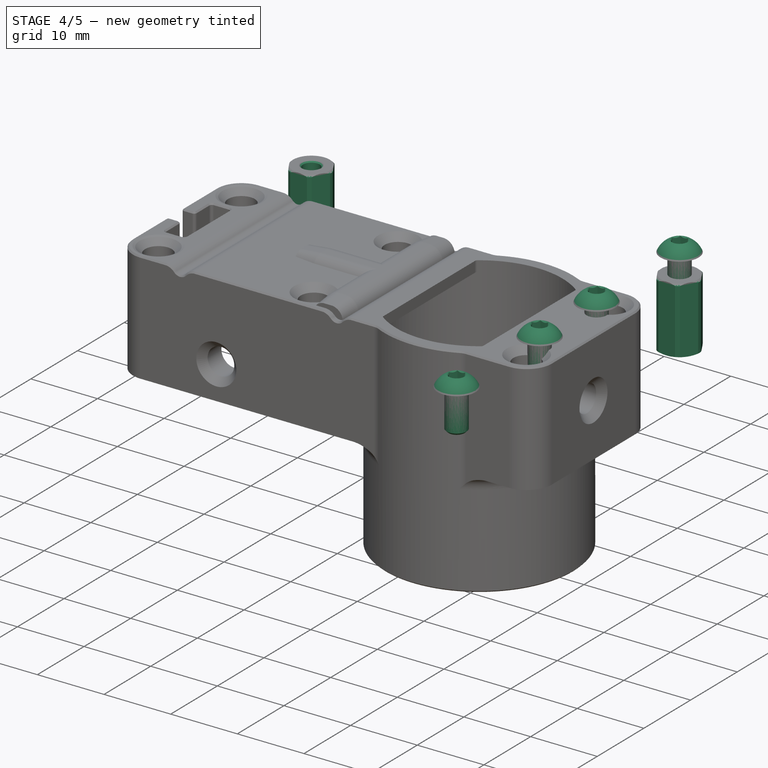
[diagram: stage 4 of 5 — iso view after this stage's code; geometry added in this stage tinted green]
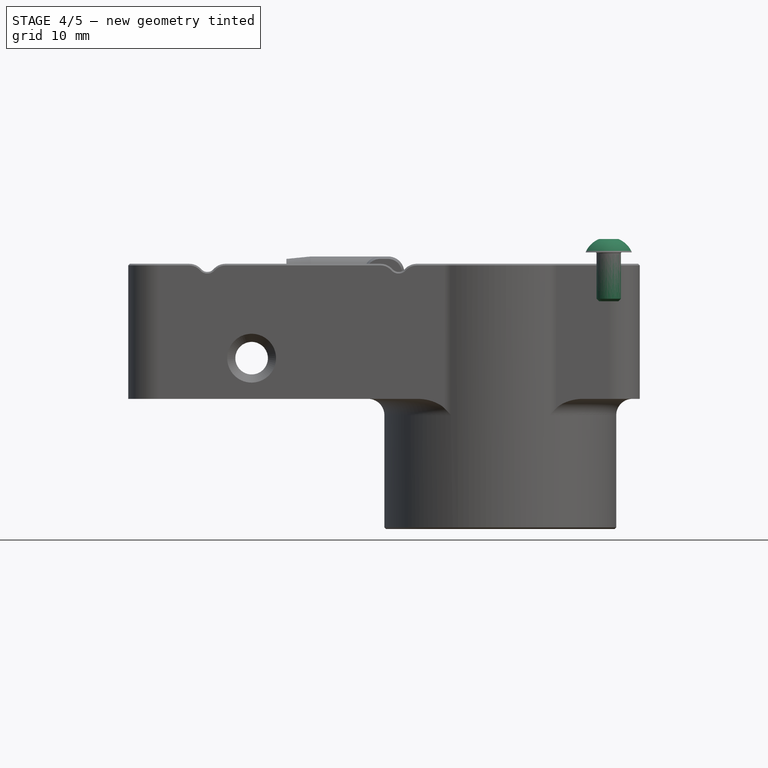
[diagram: stage 4 of 5 — front view after this stage's code; geometry added in this stage tinted green]
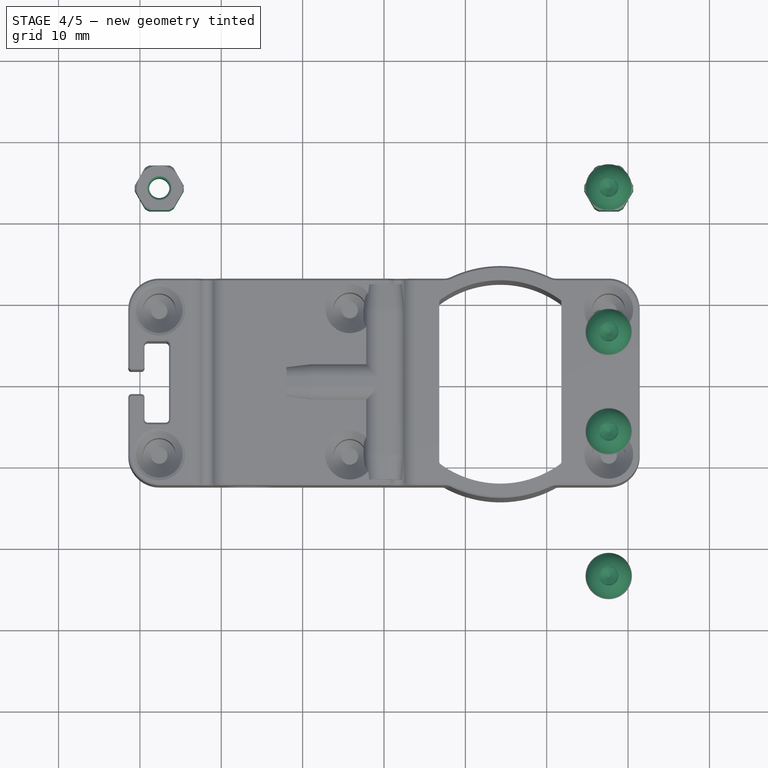
[diagram: stage 4 of 5 — top view after this stage's code; geometry added in this stage tinted green]
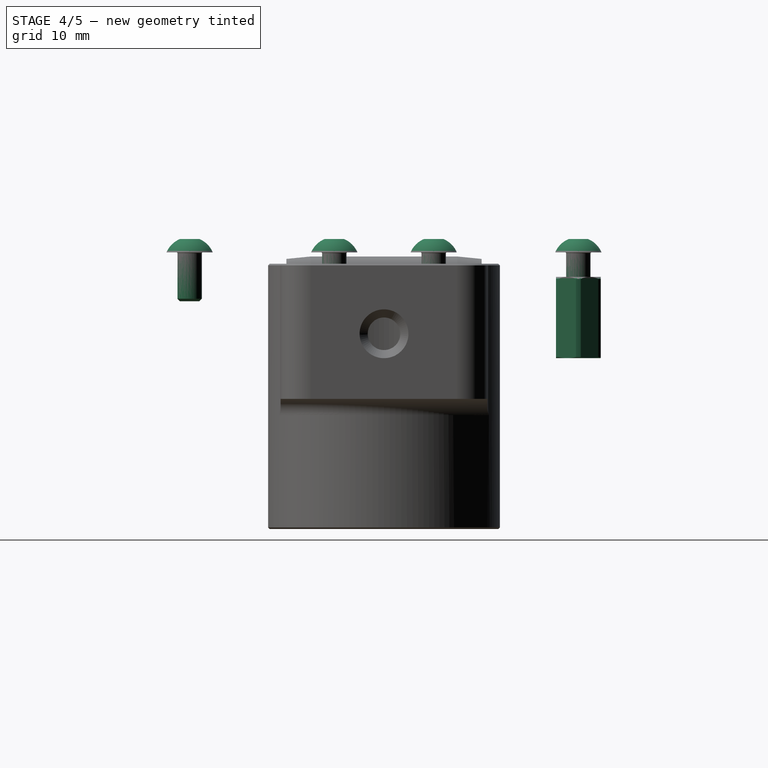
[diagram: stage 4 of 5 — right view after this stage's code; geometry added in this stage tinted green]
FEATURE [PartDesign::Chamfer] Chamfer
  AddSubType = 0
  Angle = 45
  Base = -> Pocket [Edge76,Edge73,Edge72,Edge69,Edge2,Edge62,Edge63,Edge66]
  BaseFeature = -> Pocket
  ChamferType = 0
  FlipDirection = false
  InvalidShape = false
  NewSolid = false
  Refine = true
  Size = 1
  Size2 = 1
  SupportTransform = false
  Suppress = false
  TreeRank = 0
  UseAllEdges = false
  ValidateShape = true
FEATURE [PartDesign::Chamfer] Chamfer001
  AddSubType = 0
  Angle = 45
  Base = -> Chamfer [Edge97,Edge99,Edge42,Edge3]
  BaseFeature = -> Chamfer
  ChamferType = 0
  FlipDirection = false
  InvalidShape = false
  NewSolid = false
  Refine = true
  Size = 1
  Size2 = 1
  SupportTransform = false
  Suppress = false
  TreeRank = 0
  UseAllEdges = false
  ValidateShape = true
FEATURE [PartDesign::Body] Body  label="carterTwoPump"
  AutoGroupSolids = false
  ClaimAllChildren = false
  ExportMode = 0
  Group = -> [Binder,Sketch,Pad,Sketch001,Pocket,Chamfer,Chamfer001]
  InvalidShape = false
  Origin = -> Origin022
  SingleSolid = true
  Tip = -> Chamfer001
  TreeRank = 0
  ValidateShape = false
  _ExportChildren = -> [Binder,Pad,Pocket,Chamfer,Chamfer001]
  _GroupVersion = 1
FEATURE [Part::FeaturePython] PcbSpacer  label="M3x5.5x10-Spacer"  # WARN: FeaturePython — macro-defined, semantics opaque (R4)
  BaseObject = -> Body [Edge43]
  Diameter = 2
  InvalidShape = false
  Invert = true
  LeftHanded = false
  Length = 1
  LengthCustom = 5
  MatchOuter = false
  OffsetAngle = 0
  Placement = pos=(27.6225,23.89,0) rot=(-1,0,0;3.14159rad)
  Thread = false
  TreeRank = 0
  Type = 0
  ValidateShape = false
  Width = 1
FEATURE [Part::FeaturePython] PcbSpacer001  label="M3x5.5x10-Spacer001"  # WARN: FeaturePython — macro-defined, semantics opaque (R4)
  BaseObject = -> Body [Edge42]
  Diameter = 2
  InvalidShape = false
  Invert = true
  LeftHanded = false
  Length = 1
  LengthCustom = 5
  MatchOuter = false
  OffsetAngle = 0
  Placement = pos=(27.6225,6.11,0) rot=(-1,0,0;3.14159rad)
  Thread = false
  TreeRank = 0
  Type = 0
  ValidateShape = false
  Width = 1
FEATURE [Part::FeaturePython] PcbSpacer007  label="M3x5.5x10-Spacer006"  # WARN: FeaturePython — macro-defined, semantics opaque (R4)
  BaseObject = -> Body [Edge41]
  Diameter = 2
  InvalidShape = false
  Invert = true
  LeftHanded = false
  Length = 1
  LengthCustom = 5
  MatchOuter = false
  OffsetAngle = 0
  Placement = pos=(-27.6225,23.89,0) rot=(-1,0,0;3.14159rad)
  Thread = false
  TreeRank = 0
  Type = 0
  ValidateShape = false
  Width = 1
FEATURE [Part::FeaturePython] Screw  label="M3x6-Screw"  # WARN: FeaturePython — macro-defined, semantics opaque (R4)
  BaseObject = -> Body [Edge84]
  Diameter = 1
  InvalidShape = false
  Invert = false
  LeftHanded = false
  Length = 0
  LengthCustom = 6
  MatchOuter = false
  OffsetAngle = 0
  Placement = pos=(27.6225,23.89,3) rot=(0,0,1;0rad)
  Thread = false
  TreeRank = 0
  Type = 84
  ValidateShape = false
FEATURE [Part::FeaturePython] Screw001  label="M3x6-Screw008"  # WARN: FeaturePython — macro-defined, semantics opaque (R4)
  BaseObject = -> Body [Edge83]
  Diameter = 1
  InvalidShape = false
  Invert = false
  LeftHanded = false
  Length = 0
  LengthCustom = 6
  MatchOuter = false
  OffsetAngle = 0
  Placement = pos=(27.6225,6.11,3) rot=(0,0,1;0rad)
  Thread = false
  TreeRank = 0
  Type = 84
  ValidateShape = false
FEATURE [Part::FeaturePython] Screw002  label="M3x6-Screw009"  # WARN: FeaturePython — macro-defined, semantics opaque (R4)
  BaseObject = -> Body [Edge80]
  Diameter = 1
  InvalidShape = false
  Invert = false
  LeftHanded = false
  Length = 0
  LengthCustom = 6
  MatchOuter = false
  OffsetAngle = 0
  Placement = pos=(27.6225,-6.11,3) rot=(0,0,1;0rad)
  Thread = false
  TreeRank = 0
  Type = 84
  ValidateShape = false
FEATURE [Part::FeaturePython] Screw003  label="M3x6-Screw010"  # WARN: FeaturePython — macro-defined, semantics opaque (R4)
  BaseObject = -> Body [Edge79]
  Diameter = 1
  InvalidShape = false
  Invert = false
  LeftHanded = false
  Length = 0
  LengthCustom = 6
  MatchOuter = false
  OffsetAngle = 0
  Placement = pos=(27.6225,-23.89,3) rot=(0,0,1;0rad)
  Thread = false
  TreeRank = 0
  Type = 84
  ValidateShape = false
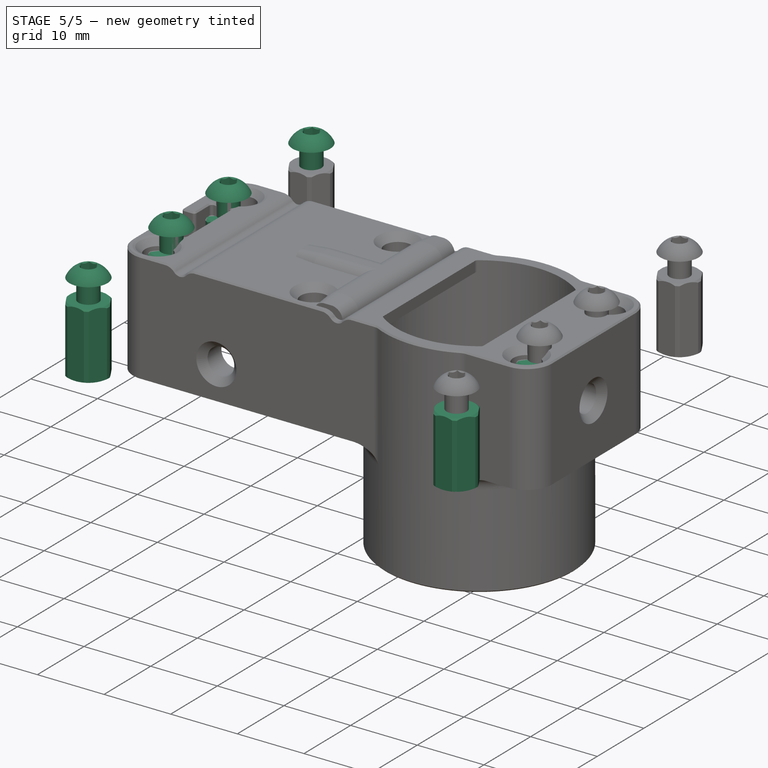
[diagram: stage 5 of 5 — iso view after this stage's code; geometry added in this stage tinted green]
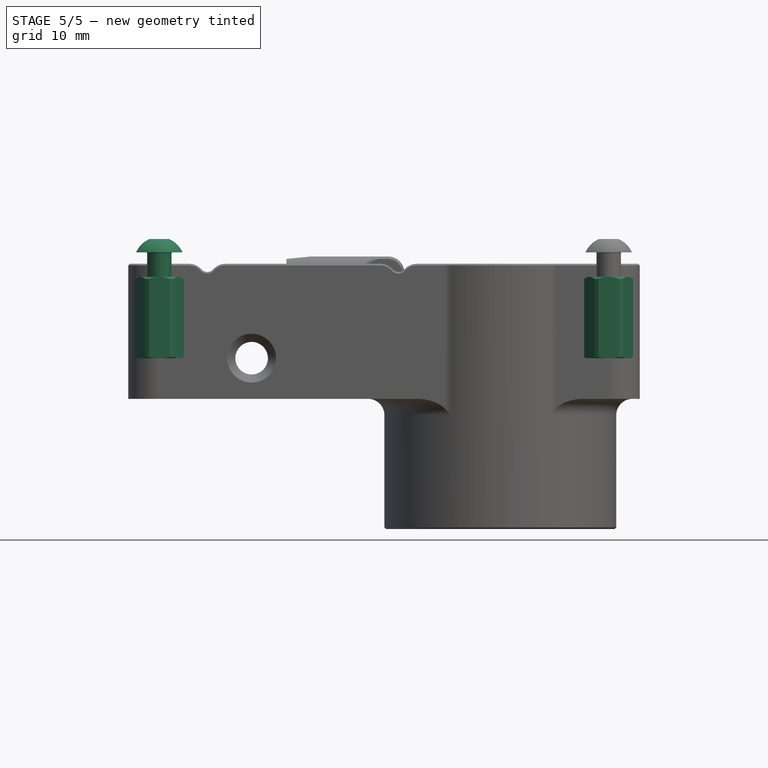
[diagram: stage 5 of 5 — front view after this stage's code; geometry added in this stage tinted green]
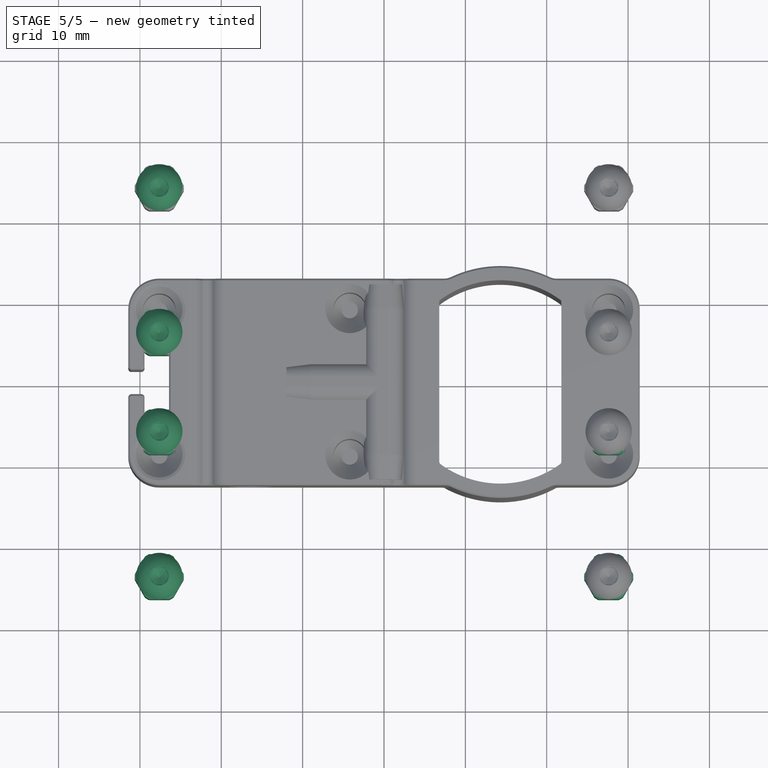
[diagram: stage 5 of 5 — top view after this stage's code; geometry added in this stage tinted green]
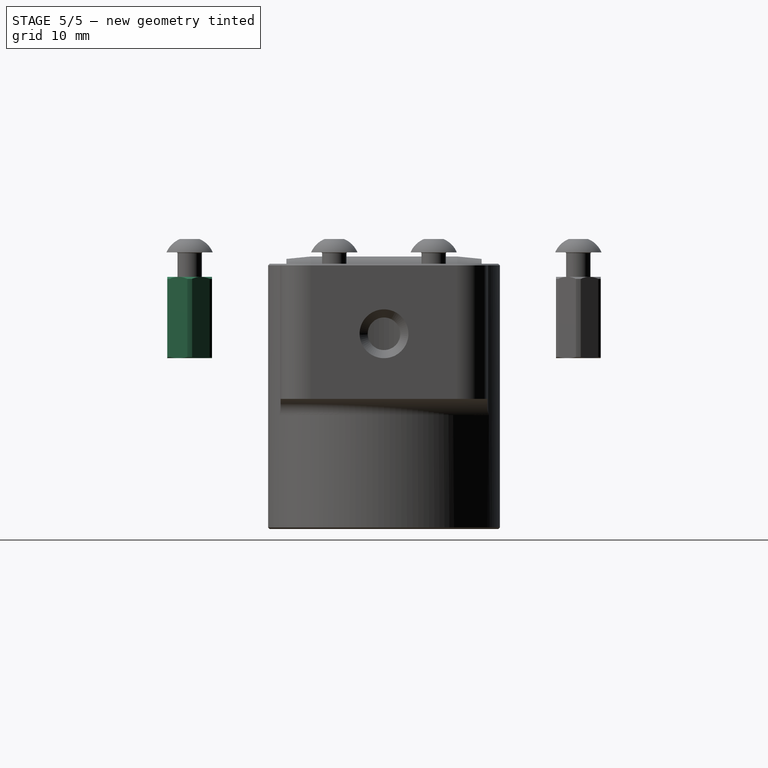
[diagram: stage 5 of 5 — right view after this stage's code; geometry added in this stage tinted green]
FEATURE [Part::FeaturePython] PcbSpacer002  label="M3x5.5x10-Spacer002"  # WARN: FeaturePython — macro-defined, semantics opaque (R4)
  BaseObject = -> Body [Edge39]
  Diameter = 2
  InvalidShape = false
  Invert = true
  LeftHanded = false
  Length = 1
  LengthCustom = 5
  MatchOuter = false
  OffsetAngle = 0
  Placement = pos=(27.6225,-6.11,0) rot=(-1,0,0;3.14159rad)
  Thread = false
  TreeRank = 0
  Type = 0
  ValidateShape = false
  Width = 1
FEATURE [Part::FeaturePython] PcbSpacer003  label="M3x5.5x10-Spacer003"  # WARN: FeaturePython — macro-defined, semantics opaque (R4)
  BaseObject = -> Body [Edge38]
  Diameter = 2
  InvalidShape = false
  Invert = true
  LeftHanded = false
  Length = 1
  LengthCustom = 5
  MatchOuter = false
  OffsetAngle = 0
  Placement = pos=(27.6225,-23.89,0) rot=(-1,0,0;3.14159rad)
  Thread = false
  TreeRank = 0
  Type = 0
  ValidateShape = false
  Width = 1
FEATURE [Part::FeaturePython] PcbSpacer005  label="M3x5.5x10-Spacer004"  # WARN: FeaturePython — macro-defined, semantics opaque (R4)
  BaseObject = -> Body [Edge37]
  Diameter = 2
  InvalidShape = false
  Invert = true
  LeftHanded = false
  Length = 1
  LengthCustom = 5
  MatchOuter = false
  OffsetAngle = 0
  Placement = pos=(-27.6225,-6.11,0) rot=(-1,0,0;3.14159rad)
  Thread = false
  TreeRank = 0
  Type = 0
  ValidateShape = false
  Width = 1
FEATURE [Part::FeaturePython] PcbSpacer006  label="M3x5.5x10-Spacer005"  # WARN: FeaturePython — macro-defined, semantics opaque (R4)
  BaseObject = -> Body [Edge40]
  Diameter = 2
  InvalidShape = false
  Invert = true
  LeftHanded = false
  Length = 1
  LengthCustom = 5
  MatchOuter = false
  OffsetAngle = 0
  Placement = pos=(-27.6225,6.11,0) rot=(-1,0,0;3.14159rad)
  Thread = false
  TreeRank = 0
  Type = 0
  ValidateShape = false
  Width = 1
FEATURE [Part::FeaturePython] PcbSpacer008  label="M3x5.5x10-Spacer007"  # WARN: FeaturePython — macro-defined, semantics opaque (R4)
  BaseObject = -> Body [Edge36]
  Diameter = 2
  InvalidShape = false
  Invert = true
  LeftHanded = false
  Length = 1
  LengthCustom = 5
  MatchOuter = false
  OffsetAngle = 0
  Placement = pos=(-27.6225,-23.89,0) rot=(-1,0,0;3.14159rad)
  Thread = false
  TreeRank = 0
  Type = 0
  ValidateShape = false
  Width = 1
FEATURE [Part::FeaturePython] Screw004  label="M3x6-Screw011"  # WARN: FeaturePython — macro-defined, semantics opaque (R4)
  BaseObject = -> Body [Edge82]
  Diameter = 1
  InvalidShape = false
  Invert = false
  LeftHanded = false
  Length = 0
  LengthCustom = 6
  MatchOuter = false
  OffsetAngle = 0
  Placement = pos=(-27.6225,23.89,3) rot=(0,0,1;0rad)
  Thread = false
  TreeRank = 0
  Type = 84
  ValidateShape = false
FEATURE [Part::FeaturePython] Screw005  label="M3x6-Screw012"  # WARN: FeaturePython — macro-defined, semantics opaque (R4)
  BaseObject = -> Body [Edge81]
  Diameter = 1
  InvalidShape = false
  Invert = false
  LeftHanded = false
  Length = 0
  LengthCustom = 6
  MatchOuter = false
  OffsetAngle = 0
  Placement = pos=(-27.6225,6.11,3) rot=(0,0,1;0rad)
  Thread = false
  TreeRank = 0
  Type = 84
  ValidateShape = false
FEATURE [Part::FeaturePython] Screw006  label="M3x6-Screw013"  # WARN: FeaturePython — macro-defined, semantics opaque (R4)
  BaseObject = -> Body [Edge78]
  Diameter = 1
  InvalidShape = false
  Invert = false
  LeftHanded = false
  Length = 0
  LengthCustom = 6
  MatchOuter = false
  OffsetAngle = 0
  Placement = pos=(-27.6225,-6.11,3) rot=(0,0,1;0rad)
  Thread = false
  TreeRank = 0
  Type = 84
  ValidateShape = false
FEATURE [Part::FeaturePython] Screw007  label="M3x6-Screw014"  # WARN: FeaturePython — macro-defined, semantics opaque (R4)
  BaseObject = -> Body [Edge77]
  Diameter = 1
  InvalidShape = false
  Invert = false
  LeftHanded = false
  Length = 0
  LengthCustom = 6
  MatchOuter = false
  OffsetAngle = 0
  Placement = pos=(-27.6225,-23.89,3) rot=(0,0,1;0rad)
  Thread = false
  TreeRank = 0
  Type = 84
  ValidateShape = false
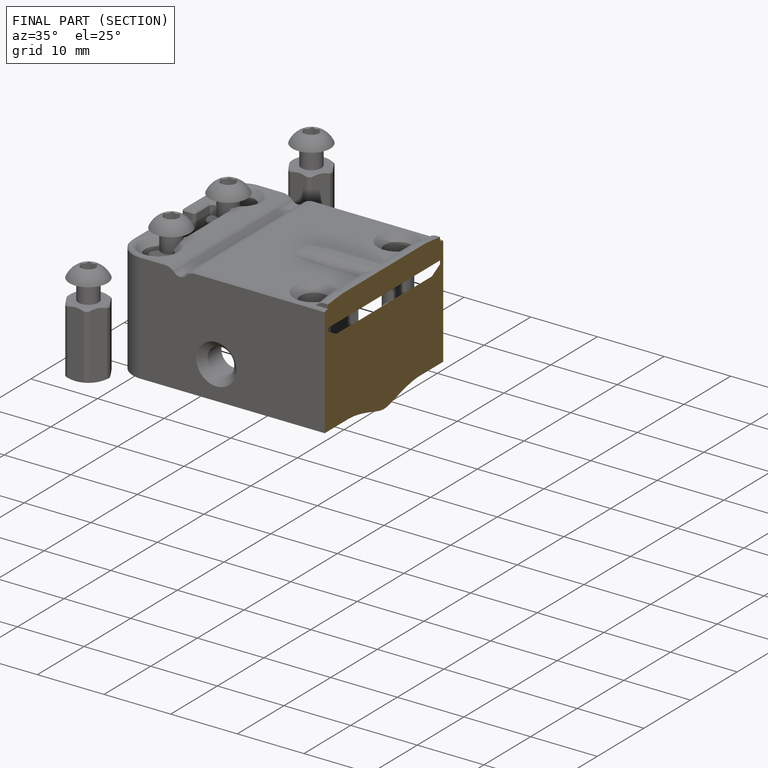
[diagram: finished part — half-section view (interior)]
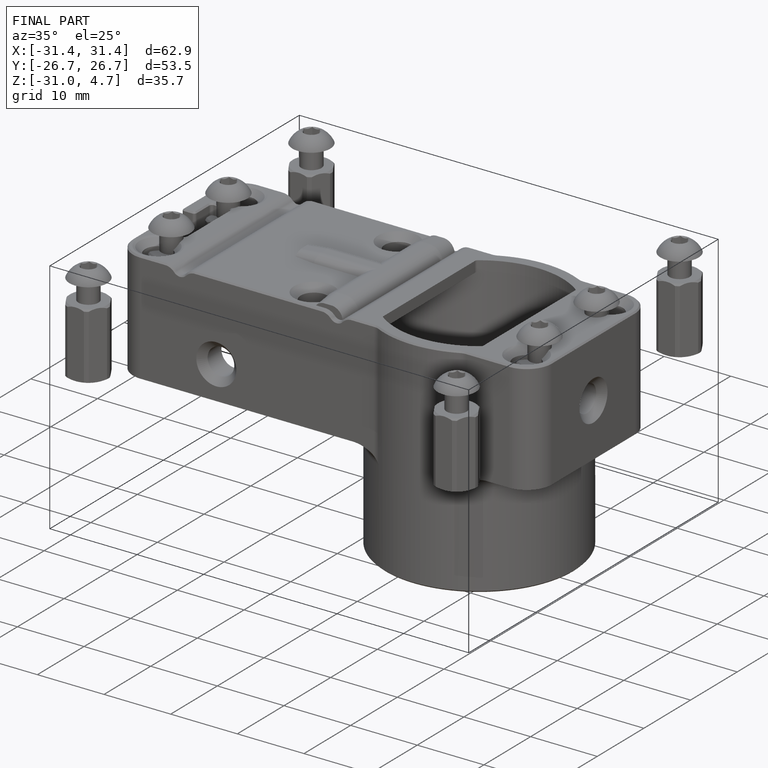
[diagram: finished part — iso view with bounding-box wireframe]
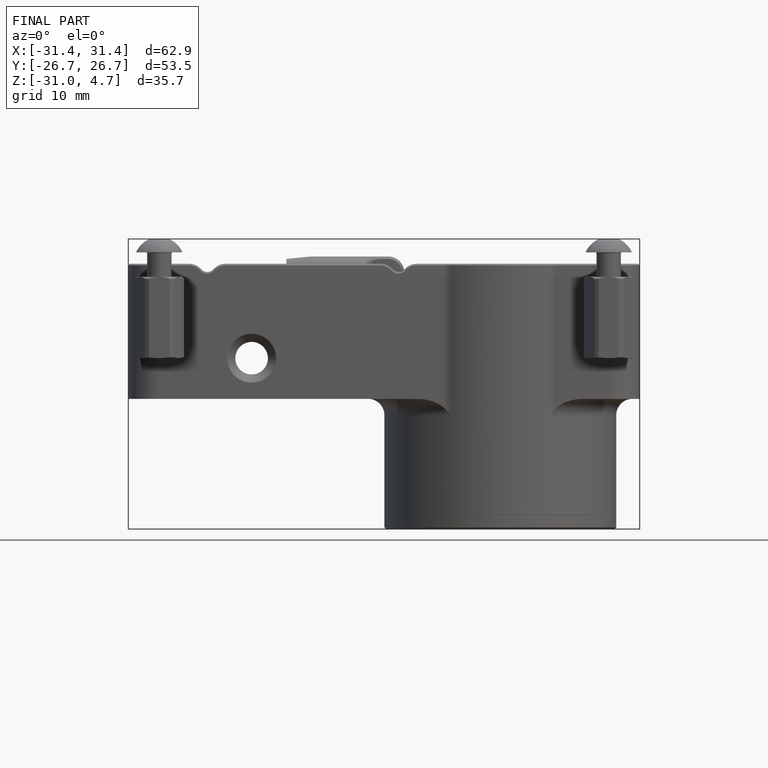
[diagram: finished part — front view with bounding-box wireframe]
